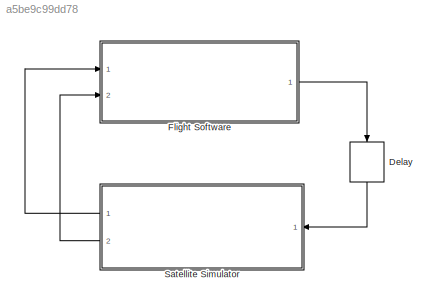
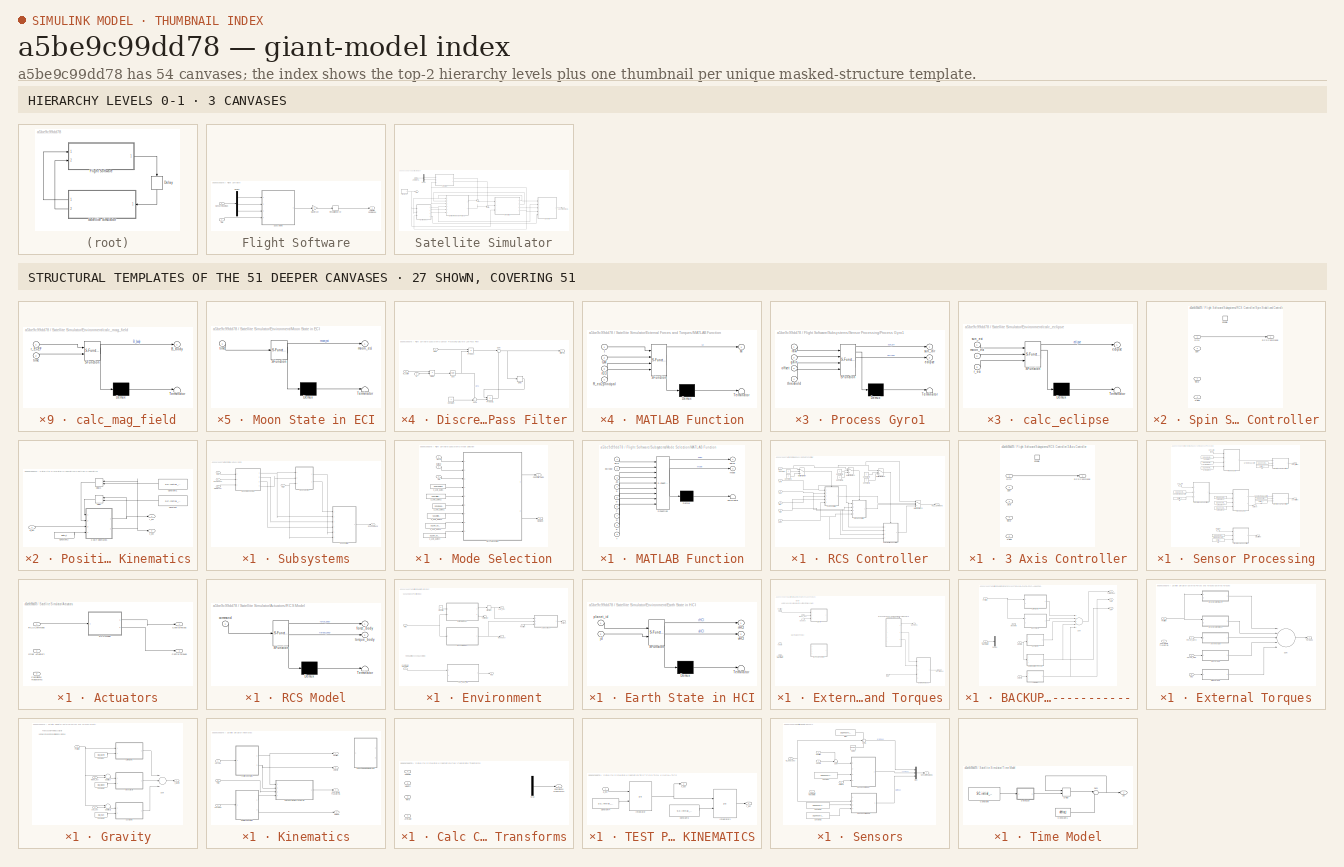
[diagram: thumbnail index - top-2 hierarchy levels (3 canvases) + 27 structural-template representatives of the remaining 51 canvases]
MODEL slx_a5be9c99dd78
KIND model
CONFIG AbsTol = auto
CONFIG EnableMultiTasking = off
CONFIG FixedStep = auto
CONFIG MaxStep = auto
CONFIG MinStep = auto
CONFIG RelTol = 1e-3
CONFIG SampleTimeConstraint = Unconstrained
CONFIG Solver = VariableStepAuto
CONFIG SolverName = VariableStepAuto
CONFIG StartTime = 0.0
CONFIG StopTime = 10.0
BLOCK [Delay] Delay
  DelayLength = 1
  InitialCondition = 0
  InputPortMap = u0
  Ports = [1, 1]
BLOCK [SubSystem] Flight Software
  Ports = [2, 1]
  RequestExecContextInheritance = off
BLOCK [Outport] Flight Software/Actuator Commands
  IconDisplay = Port number
BLOCK [Demux] Flight Software/Demux
  DisplayOption = bar
  Outputs = 3
  Ports = [1, 3]
BLOCK [Gain] Flight Software/Max thrust
  OutDataTypeStr = Inherit: Inherit via internal rule
  ParamDataTypeStr = Inherit: Inherit via internal rule
  SaturateOnIntegerOverflow = off
BLOCK [Rounding] Flight Software/Resolution Error
BLOCK [Inport] Flight Software/Sensor Readings
  IconDisplay = Port number
BLOCK [SubSystem] Flight Software/Subsystems
  Ports = [4, 1]
  RequestExecContextInheritance = off
BLOCK [Inport] Flight Software/Subsystems/Gyro
  IconDisplay = Port number
BLOCK [SubSystem] Flight Software/Subsystems/Mode Selection
  Ports = [3, 2]
  RequestExecContextInheritance = off
BLOCK [Constant] Flight Software/Subsystems/Mode Selection/3_axis_gains
  Value = SC.ax3.gains
BLOCK [Constant] Flight Software/Subsystems/Mode Selection/3_axis_gains1
  Value = SC.spin.gains
BLOCK [Constant] Flight Software/Subsystems/Mode Selection/3_axis_gains2
  Value = SC.ax3.time_constant
BLOCK [Constant] Flight Software/Subsystems/Mode Selection/3_axis_gains3
  Value = SC.spin.time_constant
BLOCK [Constant] Flight Software/Subsystems/Mode Selection/3_axis_gains4
  Value = SC.spin_up.time_constant
BLOCK [Constant] Flight Software/Subsystems/Mode Selection/3_axis_gains5
  Value = SC.spin_up.gains
BLOCK [Outport] Flight Software/Subsystems/Mode Selection/Controller Gains
  IconDisplay = Port number
BLOCK [Inport] Flight Software/Subsystems/Mode Selection/Eclipse
  IconDisplay = Port number
  Port = 2
BLOCK [Inport] Flight Software/Subsystems/Mode Selection/Gyro
  IconDisplay = Port number
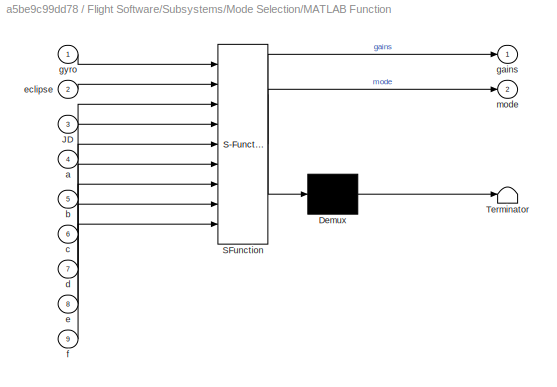
BLOCK [SubSystem] Flight Software/Subsystems/Mode Selection/MATLAB Function
  ErrorFcn = Stateflow.Translate.translate
  PermitHierarchicalResolution = ExplicitOnly
  Ports = [9, 2]
  RequestExecContextInheritance = off
  SFBlockType = MATLAB Function
  TreatAsAtomicUnit = on
BLOCK [Demux] Flight Software/Subsystems/Mode Selection/MATLAB Function/ Demux 
  Outputs = 1
  Ports = [1, 1]
BLOCK [S-Function] Flight Software/Subsystems/Mode Selection/MATLAB Function/ SFunction 
  EnableBusSupport = on
  FunctionName = sf_sfun
  PortCounts = [9 3]
  Ports = [9, 3]
  SFcnIsStateOwnerBlock = off
  SFunctionDeploymentMode = off
  Tag = Stateflow S-Function ADCS 2
BLOCK [Terminator] Flight Software/Subsystems/Mode Selection/MATLAB Function/ Terminator 
BLOCK [Inport] Flight Software/Subsystems/Mode Selection/MATLAB Function/JD
  IconDisplay = Port number
  Port = 3
BLOCK [Inport] Flight Software/Subsystems/Mode Selection/MATLAB Function/a
  IconDisplay = Port number
  Port = 4
BLOCK [Inport] Flight Software/Subsystems/Mode Selection/MATLAB Function/b
  IconDisplay = Port number
  Port = 5
BLOCK [Inport] Flight Software/Subsystems/Mode Selection/MATLAB Function/c
  IconDisplay = Port number
  Port = 6
BLOCK [Inport] Flight Software/Subsystems/Mode Selection/MATLAB Function/d
  IconDisplay = Port number
  Port = 7
BLOCK [Inport] Flight Software/Subsystems/Mode Selection/MATLAB Function/e
  IconDisplay = Port number
  Port = 8
BLOCK [Inport] Flight Software/Subsystems/Mode Selection/MATLAB Function/eclipse
  IconDisplay = Port number
  Port = 2
BLOCK [Inport] Flight Software/Subsystems/Mode Selection/MATLAB Function/f
  IconDisplay = Port number
  Port = 9
BLOCK [Outport] Flight Software/Subsystems/Mode Selection/MATLAB Function/gains
  IconDisplay = Port number
BLOCK [Inport] Flight Software/Subsystems/Mode Selection/MATLAB Function/gyro
  IconDisplay = Port number
BLOCK [Outport] Flight Software/Subsystems/Mode Selection/MATLAB Function/mode
  IconDisplay = Port number
  Port = 2
BLOCK [Outport] Flight Software/Subsystems/Mode Selection/S//C Mode
  IconDisplay = Port number
  Port = 2
BLOCK [Inport] Flight Software/Subsystems/Mode Selection/Time
  IconDisplay = Port number
  Port = 3
BLOCK [Outport] Flight Software/Subsystems/RCS Command
  IconDisplay = Port number
BLOCK [SubSystem] Flight Software/Subsystems/RCS Controller
  Ports = [6, 1]
  RequestExecContextInheritance = off
BLOCK [SubSystem] Flight Software/Subsystems/RCS Controller/3 Axis Controller
  Ports = [5, 1, 1]
  RequestExecContextInheritance = off
  TreatAsAtomicUnit = on
BLOCK [EnablePort] Flight Software/Subsystems/RCS Controller/3 Axis Controller/Enable
  Ports = []
BLOCK [Inport] Flight Software/Subsystems/RCS Controller/3 Axis Controller/Gains
  IconDisplay = Port number
  Port = 5
BLOCK [Inport] Flight Software/Subsystems/RCS Controller/3 Axis Controller/Gyro
  IconDisplay = Port number
BLOCK [Outport] Flight Software/Subsystems/RCS Controller/3 Axis Controller/RCS Command
  IconDisplay = Port number
BLOCK [Inport] Flight Software/Subsystems/RCS Controller/3 Axis Controller/Star
  IconDisplay = Port number
  Port = 3
BLOCK [Inport] Flight Software/Subsystems/RCS Controller/3 Axis Controller/Sun
  IconDisplay = Port number
  Port = 2
BLOCK [Inport] Flight Software/Subsystems/RCS Controller/3 Axis Controller/Time
  IconDisplay = Port number
  Port = 4
BLOCK [Constant] Flight Software/Subsystems/RCS Controller/Constant
BLOCK [Constant] Flight Software/Subsystems/RCS Controller/Constant1
  Value = 0
BLOCK [Constant] Flight Software/Subsystems/RCS Controller/Constant2
BLOCK [Constant] Flight Software/Subsystems/RCS Controller/Constant3
  Value = 0
BLOCK [Constant] Flight Software/Subsystems/RCS Controller/Constant4
BLOCK [Constant] Flight Software/Subsystems/RCS Controller/Constant5
  Value = 0
BLOCK [Inport] Flight Software/Subsystems/RCS Controller/Gains
  IconDisplay = Port number
  Port = 5
BLOCK [Inport] Flight Software/Subsystems/RCS Controller/Gyro
  IconDisplay = Port number
  Port = 2
BLOCK [Inport] Flight Software/Subsystems/RCS Controller/Mode
  IconDisplay = Port number
BLOCK [MultiPortSwitch] Flight Software/Subsystems/RCS Controller/Multiport Switch
  InputSameDT = off
  Inputs = 2
  Ports = [3, 1]
  SaturateOnIntegerOverflow = off
BLOCK [MultiPortSwitch] Flight Software/Subsystems/RCS Controller/Multiport Switch1
  InputSameDT = off
  Inputs = 2
  Ports = [3, 1]
  SaturateOnIntegerOverflow = off
BLOCK [MultiPortSwitch] Flight Software/Subsystems/RCS Controller/Multiport Switch2
  InputSameDT = off
  Inputs = 2
  Ports = [3, 1]
  SaturateOnIntegerOverflow = off
BLOCK [MultiPortSwitch] Flight Software/Subsystems/RCS Controller/Multiport Switch3
  InputSameDT = off
  Ports = [4, 1]
  SaturateOnIntegerOverflow = off
BLOCK [Outport] Flight Software/Subsystems/RCS Controller/RCS_Command
  IconDisplay = Port number
BLOCK [SubSystem] Flight Software/Subsystems/RCS Controller/Spin Stabilized Controller
  Ports = [4, 1, 1]
  RequestExecContextInheritance = off
  TreatAsAtomicUnit = on
BLOCK [EnablePort] Flight Software/Subsystems/RCS Controller/Spin Stabilized Controller/Enable
  Ports = []
BLOCK [Inport] Flight Software/Subsystems/RCS Controller/Spin Stabilized Controller/Gains
  IconDisplay = Port number
  Port = 4
BLOCK [Inport] Flight Software/Subsystems/RCS Controller/Spin Stabilized Controller/Gyro
  IconDisplay = Port number
BLOCK [Outport] Flight Software/Subsystems/RCS Controller/Spin Stabilized Controller/RCS Command
  IconDisplay = Port number
BLOCK [Inport] Flight Software/Subsystems/RCS Controller/Spin Stabilized Controller/Sun
  IconDisplay = Port number
  Port = 2
BLOCK [Inport] Flight Software/Subsystems/RCS Controller/Spin Stabilized Controller/Time
  IconDisplay = Port number
  Port = 3
BLOCK [SubSystem] Flight Software/Subsystems/RCS Controller/Spin Up Controller
  Ports = [4, 1, 1]
  RequestExecContextInheritance = off
  TreatAsAtomicUnit = on
BLOCK [EnablePort] Flight Software/Subsystems/RCS Controller/Spin Up Controller/Enable
  Ports = []
BLOCK [Inport] Flight Software/Subsystems/RCS Controller/Spin Up Controller/Gains
  IconDisplay = Port number
  Port = 4
BLOCK [Inport] Flight Software/Subsystems/RCS Controller/Spin Up Controller/Gyro
  IconDisplay = Port number
BLOCK [Outport] Flight Software/Subsystems/RCS Controller/Spin Up Controller/RCS Command
  IconDisplay = Port number
BLOCK [Inport] Flight Software/Subsystems/RCS Controller/Spin Up Controller/Sun
  IconDisplay = Port number
  Port = 2
BLOCK [Inport] Flight Software/Subsystems/RCS Controller/Spin Up Controller/Time
  IconDisplay = Port number
  Port = 3
BLOCK [Inport] Flight Software/Subsystems/RCS Controller/Star
  IconDisplay = Port number
  Port = 4
BLOCK [Inport] Flight Software/Subsystems/RCS Controller/Sun
  IconDisplay = Port number
  Port = 3
BLOCK [Inport] Flight Software/Subsystems/RCS Controller/Time
  IconDisplay = Port number
  Port = 6
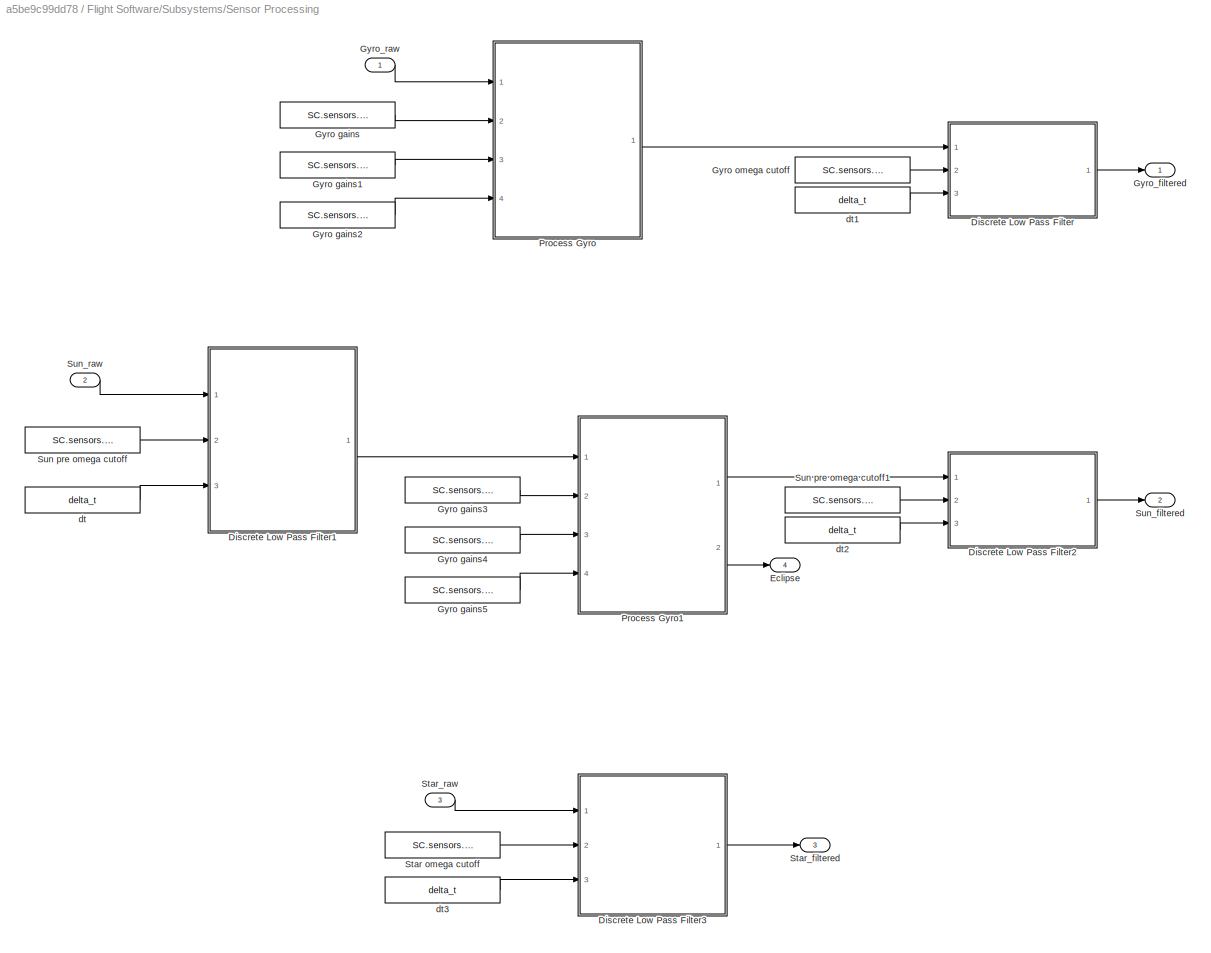
BLOCK [SubSystem] Flight Software/Subsystems/Sensor Processing
  Ports = [3, 4]
  RequestExecContextInheritance = off
BLOCK [SubSystem] Flight Software/Subsystems/Sensor Processing/Discrete Low Pass Filter
  Ports = [3, 1]
  RequestExecContextInheritance = off
BLOCK [Constant] Flight Software/Subsystems/Sensor Processing/Discrete Low Pass Filter/Constant
BLOCK [Delay] Flight Software/Subsystems/Sensor Processing/Discrete Low Pass Filter/Delay
  DelayLength = 1
  InitialCondition = 0
  InputPortMap = u0
  Ports = [1, 1]
BLOCK [Product] Flight Software/Subsystems/Sensor Processing/Discrete Low Pass Filter/Divide
  InputSameDT = off
  Inputs = */
  OutDataTypeStr = Inherit: Inherit via internal rule
  Ports = [2, 1]
  RndMeth = Floor
  SaturateOnIntegerOverflow = off
BLOCK [Math] Flight Software/Subsystems/Sensor Processing/Discrete Low Pass Filter/Exp
  Ports = [1, 1]
BLOCK [Outport] Flight Software/Subsystems/Sensor Processing/Discrete Low Pass Filter/Filtered
  IconDisplay = Port number
BLOCK [Product] Flight Software/Subsystems/Sensor Processing/Discrete Low Pass Filter/Product
  InputSameDT = off
  OutDataTypeStr = Inherit: Inherit via internal rule
  Ports = [2, 1]
  RndMeth = Floor
  SaturateOnIntegerOverflow = off
BLOCK [Product] Flight Software/Subsystems/Sensor Processing/Discrete Low Pass Filter/Product1
  InputSameDT = off
  OutDataTypeStr = Inherit: Inherit via internal rule
  Ports = [2, 1]
  RndMeth = Floor
  SaturateOnIntegerOverflow = off
BLOCK [Inport] Flight Software/Subsystems/Sensor Processing/Discrete Low Pass Filter/Raw
  IconDisplay = Port number
BLOCK [Sum] Flight Software/Subsystems/Sensor Processing/Discrete Low Pass Filter/Sum
  IconShape = round
  InputSameDT = off
  Inputs = |++
  OutDataTypeStr = Inherit: Inherit via internal rule
  Ports = [2, 1]
  SaturateOnIntegerOverflow = off
BLOCK [Sum] Flight Software/Subsystems/Sensor Processing/Discrete Low Pass Filter/Sum1
  IconShape = round
  InputSameDT = off
  Inputs = -+|
  OutDataTypeStr = Inherit: Inherit via internal rule
  Ports = [2, 1]
  SaturateOnIntegerOverflow = off
BLOCK [Inport] Flight Software/Subsystems/Sensor Processing/Discrete Low Pass Filter/dt
  IconDisplay = Port number
  Port = 3
BLOCK [Inport] Flight Software/Subsystems/Sensor Processing/Discrete Low Pass Filter/w_cutoff
  IconDisplay = Port number
  Port = 2
BLOCK [SubSystem] Flight Software/Subsystems/Sensor Processing/Discrete Low Pass Filter1
  Ports = [3, 1]
  RequestExecContextInheritance = off
BLOCK [Constant] Flight Software/Subsystems/Sensor Processing/Discrete Low Pass Filter1/Constant
BLOCK [Delay] Flight Software/Subsystems/Sensor Processing/Discrete Low Pass Filter1/Delay
  DelayLength = 1
  InitialCondition = 0
  InputPortMap = u0
  Ports = [1, 1]
BLOCK [Product] Flight Software/Subsystems/Sensor Processing/Discrete Low Pass Filter1/Divide
  InputSameDT = off
  Inputs = */
  OutDataTypeStr = Inherit: Inherit via internal rule
  Ports = [2, 1]
  RndMeth = Floor
  SaturateOnIntegerOverflow = off
BLOCK [Math] Flight Software/Subsystems/Sensor Processing/Discrete Low Pass Filter1/Exp
  Ports = [1, 1]
BLOCK [Outport] Flight Software/Subsystems/Sensor Processing/Discrete Low Pass Filter1/Filtered
  IconDisplay = Port number
BLOCK [Product] Flight Software/Subsystems/Sensor Processing/Discrete Low Pass Filter1/Product
  InputSameDT = off
  OutDataTypeStr = Inherit: Inherit via internal rule
  Ports = [2, 1]
  RndMeth = Floor
  SaturateOnIntegerOverflow = off
BLOCK [Product] Flight Software/Subsystems/Sensor Processing/Discrete Low Pass Filter1/Product1
  InputSameDT = off
  OutDataTypeStr = Inherit: Inherit via internal rule
  Ports = [2, 1]
  RndMeth = Floor
  SaturateOnIntegerOverflow = off
BLOCK [Inport] Flight Software/Subsystems/Sensor Processing/Discrete Low Pass Filter1/Raw
  IconDisplay = Port number
BLOCK [Sum] Flight Software/Subsystems/Sensor Processing/Discrete Low Pass Filter1/Sum
  IconShape = round
  InputSameDT = off
  Inputs = |++
  OutDataTypeStr = Inherit: Inherit via internal rule
  Ports = [2, 1]
  SaturateOnIntegerOverflow = off
BLOCK [Sum] Flight Software/Subsystems/Sensor Processing/Discrete Low Pass Filter1/Sum1
  IconShape = round
  InputSameDT = off
  Inputs = -+|
  OutDataTypeStr = Inherit: Inherit via internal rule
  Ports = [2, 1]
  SaturateOnIntegerOverflow = off
BLOCK [Inport] Flight Software/Subsystems/Sensor Processing/Discrete Low Pass Filter1/dt
  IconDisplay = Port number
  Port = 3
BLOCK [Inport] Flight Software/Subsystems/Sensor Processing/Discrete Low Pass Filter1/w_cutoff
  IconDisplay = Port number
  Port = 2
BLOCK [SubSystem] Flight Software/Subsystems/Sensor Processing/Discrete Low Pass Filter2
  Ports = [3, 1]
  RequestExecContextInheritance = off
BLOCK [Constant] Flight Software/Subsystems/Sensor Processing/Discrete Low Pass Filter2/Constant
BLOCK [Delay] Flight Software/Subsystems/Sensor Processing/Discrete Low Pass Filter2/Delay
  DelayLength = 1
  InitialCondition = 0
  InputPortMap = u0
  Ports = [1, 1]
BLOCK [Product] Flight Software/Subsystems/Sensor Processing/Discrete Low Pass Filter2/Divide
  InputSameDT = off
  Inputs = */
  OutDataTypeStr = Inherit: Inherit via internal rule
  Ports = [2, 1]
  RndMeth = Floor
  SaturateOnIntegerOverflow = off
BLOCK [Math] Flight Software/Subsystems/Sensor Processing/Discrete Low Pass Filter2/Exp
  Ports = [1, 1]
BLOCK [Outport] Flight Software/Subsystems/Sensor Processing/Discrete Low Pass Filter2/Filtered
  IconDisplay = Port number
BLOCK [Product] Flight Software/Subsystems/Sensor Processing/Discrete Low Pass Filter2/Product
  InputSameDT = off
  OutDataTypeStr = Inherit: Inherit via internal rule
  Ports = [2, 1]
  RndMeth = Floor
  SaturateOnIntegerOverflow = off
BLOCK [Product] Flight Software/Subsystems/Sensor Processing/Discrete Low Pass Filter2/Product1
  InputSameDT = off
  OutDataTypeStr = Inherit: Inherit via internal rule
  Ports = [2, 1]
  RndMeth = Floor
  SaturateOnIntegerOverflow = off
BLOCK [Inport] Flight Software/Subsystems/Sensor Processing/Discrete Low Pass Filter2/Raw
  IconDisplay = Port number
BLOCK [Sum] Flight Software/Subsystems/Sensor Processing/Discrete Low Pass Filter2/Sum
  IconShape = round
  InputSameDT = off
  Inputs = |++
  OutDataTypeStr = Inherit: Inherit via internal rule
  Ports = [2, 1]
  SaturateOnIntegerOverflow = off
BLOCK [Sum] Flight Software/Subsystems/Sensor Processing/Discrete Low Pass Filter2/Sum1
  IconShape = round
  InputSameDT = off
  Inputs = -+|
  OutDataTypeStr = Inherit: Inherit via internal rule
  Ports = [2, 1]
  SaturateOnIntegerOverflow = off
BLOCK [Inport] Flight Software/Subsystems/Sensor Processing/Discrete Low Pass Filter2/dt
  IconDisplay = Port number
  Port = 3
BLOCK [Inport] Flight Software/Subsystems/Sensor Processing/Discrete Low Pass Filter2/w_cutoff
  IconDisplay = Port number
  Port = 2
BLOCK [SubSystem] Flight Software/Subsystems/Sensor Processing/Discrete Low Pass Filter3
  Ports = [3, 1]
  RequestExecContextInheritance = off
BLOCK [Constant] Flight Software/Subsystems/Sensor Processing/Discrete Low Pass Filter3/Constant
BLOCK [Delay] Flight Software/Subsystems/Sensor Processing/Discrete Low Pass Filter3/Delay
  DelayLength = 1
  InitialCondition = 0
  InputPortMap = u0
  Ports = [1, 1]
BLOCK [Product] Flight Software/Subsystems/Sensor Processing/Discrete Low Pass Filter3/Divide
  InputSameDT = off
  Inputs = */
  OutDataTypeStr = Inherit: Inherit via internal rule
  Ports = [2, 1]
  RndMeth = Floor
  SaturateOnIntegerOverflow = off
BLOCK [Math] Flight Software/Subsystems/Sensor Processing/Discrete Low Pass Filter3/Exp
  Ports = [1, 1]
BLOCK [Outport] Flight Software/Subsystems/Sensor Processing/Discrete Low Pass Filter3/Filtered
  IconDisplay = Port number
BLOCK [Product] Flight Software/Subsystems/Sensor Processing/Discrete Low Pass Filter3/Product
  InputSameDT = off
  OutDataTypeStr = Inherit: Inherit via internal rule
  Ports = [2, 1]
  RndMeth = Floor
  SaturateOnIntegerOverflow = off
BLOCK [Product] Flight Software/Subsystems/Sensor Processing/Discrete Low Pass Filter3/Product1
  InputSameDT = off
  OutDataTypeStr = Inherit: Inherit via internal rule
  Ports = [2, 1]
  RndMeth = Floor
  SaturateOnIntegerOverflow = off
BLOCK [Inport] Flight Software/Subsystems/Sensor Processing/Discrete Low Pass Filter3/Raw
  IconDisplay = Port number
BLOCK [Sum] Flight Software/Subsystems/Sensor Processing/Discrete Low Pass Filter3/Sum
  IconShape = round
  InputSameDT = off
  Inputs = |++
  OutDataTypeStr = Inherit: Inherit via internal rule
  Ports = [2, 1]
  SaturateOnIntegerOverflow = off
BLOCK [Sum] Flight Software/Subsystems/Sensor Processing/Discrete Low Pass Filter3/Sum1
  IconShape = round
  InputSameDT = off
  Inputs = -+|
  OutDataTypeStr = Inherit: Inherit via internal rule
  Ports = [2, 1]
  SaturateOnIntegerOverflow = off
BLOCK [Inport] Flight Software/Subsystems/Sensor Processing/Discrete Low Pass Filter3/dt
  IconDisplay = Port number
  Port = 3
BLOCK [Inport] Flight Software/Subsystems/Sensor Processing/Discrete Low Pass Filter3/w_cutoff
  IconDisplay = Port number
  Port = 2
BLOCK [Outport] Flight Software/Subsystems/Sensor Processing/Eclipse
  IconDisplay = Port number
  Port = 4
BLOCK [Constant] Flight Software/Subsystems/Sensor Processing/Gyro gains
  Value = SC.sensors.gyro.gains
BLOCK [Constant] Flight Software/Subsystems/Sensor Processing/Gyro gains1
  Value = SC.sensors.gyro.offset
BLOCK [Constant] Flight Software/Subsystems/Sensor Processing/Gyro gains2
  Value = SC.sensors.gyro.rot_mat
BLOCK [Constant] Flight Software/Subsystems/Sensor Processing/Gyro gains3
  Value = SC.sensors.sun.gains
BLOCK [Constant] Flight Software/Subsystems/Sensor Processing/Gyro gains4
  Value = SC.sensors.sun.offset
BLOCK [Constant] Flight Software/Subsystems/Sensor Processing/Gyro gains5
  Value = SC.sensors.sun.threshold
BLOCK [Constant] Flight Software/Subsystems/Sensor Processing/Gyro omega cutoff
  Value = SC.sensors.gyro.wc
BLOCK [Outport] Flight Software/Subsystems/Sensor Processing/Gyro_filtered
  IconDisplay = Port number
BLOCK [Inport] Flight Software/Subsystems/Sensor Processing/Gyro_raw
  IconDisplay = Port number
BLOCK [SubSystem] Flight Software/Subsystems/Sensor Processing/Process Gyro
  ErrorFcn = Stateflow.Translate.translate
  PermitHierarchicalResolution = ExplicitOnly
  Ports = [4, 1]
  RequestExecContextInheritance = off
  SFBlockType = MATLAB Function
  TreatAsAtomicUnit = on
BLOCK [Demux] Flight Software/Subsystems/Sensor Processing/Process Gyro/ Demux 
  Outputs = 1
  Ports = [1, 1]
BLOCK [S-Function] Flight Software/Subsystems/Sensor Processing/Process Gyro/ SFunction 
  EnableBusSupport = on
  FunctionName = sf_sfun
  PortCounts = [4 2]
  Ports = [4, 2]
  SFcnIsStateOwnerBlock = off
  SFunctionDeploymentMode = off
  Tag = Stateflow S-Function ADCS 1
BLOCK [Terminator] Flight Software/Subsystems/Sensor Processing/Process Gyro/ Terminator 
BLOCK [Inport] Flight Software/Subsystems/Sensor Processing/Process Gyro/gain
  IconDisplay = Port number
  Port = 2
BLOCK [Outport] Flight Software/Subsystems/Sensor Processing/Process Gyro/gyro
  IconDisplay = Port number
BLOCK [Inport] Flight Software/Subsystems/Sensor Processing/Process Gyro/offset
  IconDisplay = Port number
  Port = 3
BLOCK [Inport] Flight Software/Subsystems/Sensor Processing/Process Gyro/raw
  IconDisplay = Port number
BLOCK [Inport] Flight Software/Subsystems/Sensor Processing/Process Gyro/rot
  IconDisplay = Port number
  Port = 4
BLOCK [SubSystem] Flight Software/Subsystems/Sensor Processing/Process Gyro1
  ErrorFcn = Stateflow.Translate.translate
  PermitHierarchicalResolution = ExplicitOnly
  Ports = [4, 2]
  RequestExecContextInheritance = off
  SFBlockType = MATLAB Function
  TreatAsAtomicUnit = on
BLOCK [Demux] Flight Software/Subsystems/Sensor Processing/Process Gyro1/ Demux 
  Outputs = 1
  Ports = [1, 1]
BLOCK [S-Function] Flight Software/Subsystems/Sensor Processing/Process Gyro1/ SFunction 
  EnableBusSupport = on
  FunctionName = sf_sfun
  PortCounts = [4 3]
  Ports = [4, 3]
  SFcnIsStateOwnerBlock = off
  SFunctionDeploymentMode = off
  Tag = Stateflow S-Function ADCS 3
BLOCK [Terminator] Flight Software/Subsystems/Sensor Processing/Process Gyro1/ Terminator 
BLOCK [Outport] Flight Software/Subsystems/Sensor Processing/Process Gyro1/eclipse
  IconDisplay = Port number
  Port = 2
BLOCK [Inport] Flight Software/Subsystems/Sensor Processing/Process Gyro1/gain
  IconDisplay = Port number
  Port = 2
BLOCK [Inport] Flight Software/Subsystems/Sensor Processing/Process Gyro1/offset
  IconDisplay = Port number
  Port = 3
BLOCK [Inport] Flight Software/Subsystems/Sensor Processing/Process Gyro1/raw
  IconDisplay = Port number
BLOCK [Outport] Flight Software/Subsystems/Sensor Processing/Process Gyro1/sun_dir
  IconDisplay = Port number
BLOCK [Inport] Flight Software/Subsystems/Sensor Processing/Process Gyro1/threshold
  IconDisplay = Port number
  Port = 4
BLOCK [Constant] Flight Software/Subsystems/Sensor Processing/Star omega cutoff
  Value = SC.sensors.star.wc
BLOCK [Outport] Flight Software/Subsystems/Sensor Processing/Star_filtered
  IconDisplay = Port number
  Port = 3
BLOCK [Inport] Flight Software/Subsystems/Sensor Processing/Star_raw
  IconDisplay = Port number
  Port = 3
BLOCK [Constant] Flight Software/Subsystems/Sensor Processing/Sun pre omega cutoff
  Value = SC.sensors.sun.pre_wc
BLOCK [Constant] Flight Software/Subsystems/Sensor Processing/Sun pre omega cutoff1
  Value = SC.sensors.sun.dir_wc
BLOCK [Outport] Flight Software/Subsystems/Sensor Processing/Sun_filtered
  IconDisplay = Port number
  Port = 2
BLOCK [Inport] Flight Software/Subsystems/Sensor Processing/Sun_raw
  IconDisplay = Port number
  Port = 2
BLOCK [Constant] Flight Software/Subsystems/Sensor Processing/dt
  Value = delta_t
BLOCK [Constant] Flight Software/Subsystems/Sensor Processing/dt1
  Value = delta_t
BLOCK [Constant] Flight Software/Subsystems/Sensor Processing/dt2
  Value = delta_t
BLOCK [Constant] Flight Software/Subsystems/Sensor Processing/dt3
  Value = delta_t
BLOCK [Inport] Flight Software/Subsystems/Star Tracker
  IconDisplay = Port number
  Port = 3
BLOCK [Inport] Flight Software/Subsystems/Sun Sensor
  IconDisplay = Port number
  Port = 2
BLOCK [Inport] Flight Software/Subsystems/Time
  IconDisplay = Port number
  Port = 4
BLOCK [Inport] Flight Software/Time
  IconDisplay = Port number
  Port = 2
BLOCK [SubSystem] Satellite Simulator
  Ports = [1, 2]
  RequestExecContextInheritance = off
BLOCK [Inport] Satellite Simulator/Actuator Commands
  IconDisplay = Port number
BLOCK [SubSystem] Satellite Simulator/Actuators
  Ports = [3, 2]
  RequestExecContextInheritance = off
BLOCK [Outport] Satellite Simulator/Actuators/Control Forces
  IconDisplay = Port number
BLOCK [Outport] Satellite Simulator/Actuators/Control Torques
  IconDisplay = Port number
  Port = 2
BLOCK [Inport] Satellite Simulator/Actuators/Coordinate Transforms
  IconDisplay = Port number
  Port = 3
BLOCK [Inport] Satellite Simulator/Actuators/Other Actuator?
  IconDisplay = Port number
  Port = 2
BLOCK [Inport] Satellite Simulator/Actuators/RCS Command
  IconDisplay = Port number
BLOCK [SubSystem] Satellite Simulator/Actuators/RCS Model
  ErrorFcn = Stateflow.Translate.translate
  PermitHierarchicalResolution = ExplicitOnly
  Ports = [1, 2]
  RequestExecContextInheritance = off
  SFBlockType = MATLAB Function
  TreatAsAtomicUnit = on
BLOCK [Demux] Satellite Simulator/Actuators/RCS Model/ Demux 
  Outputs = 1
  Ports = [1, 1]
BLOCK [S-Function] Satellite Simulator/Actuators/RCS Model/ SFunction 
  EnableBusSupport = on
  FunctionName = sf_sfun
  PortCounts = [1 3]
  Ports = [1, 3]
  SFcnIsStateOwnerBlock = off
  SFunctionDeploymentMode = off
  Tag = Stateflow S-Function ADCS 18
BLOCK [Terminator] Satellite Simulator/Actuators/RCS Model/ Terminator 
BLOCK [Inport] Satellite Simulator/Actuators/RCS Model/command
  IconDisplay = Port number
BLOCK [Outport] Satellite Simulator/Actuators/RCS Model/force_body
  IconDisplay = Port number
BLOCK [Outport] Satellite Simulator/Actuators/RCS Model/torque_body
  IconDisplay = Port number
  Port = 2
BLOCK [Demux] Satellite Simulator/Demux
  DisplayOption = bar
  Outputs = 2
  Ports = [1, 2]
BLOCK [SubSystem] Satellite Simulator/Environment
  Ports = [3, 4]
  RequestExecContextInheritance = off
BLOCK [Inport] Satellite Simulator/Environment/Coordinate Transforms
  IconDisplay = Port number
  Port = 3
BLOCK [SubSystem] Satellite Simulator/Environment/Earth State in HCI
  ErrorFcn = Stateflow.Translate.translate
  PermitHierarchicalResolution = ExplicitOnly
  Ports = [2, 2]
  RequestExecContextInheritance = off
  SFBlockType = MATLAB Function
  TreatAsAtomicUnit = on
BLOCK [Demux] Satellite Simulator/Environment/Earth State in HCI/ Demux 
  Outputs = 1
  Ports = [1, 1]
BLOCK [S-Function] Satellite Simulator/Environment/Earth State in HCI/ SFunction 
  EnableBusSupport = on
  FunctionName = sf_sfun
  PortCounts = [2 3]
  Ports = [2, 3]
  SFcnIsStateOwnerBlock = off
  SFunctionDeploymentMode = off
  Tag = Stateflow S-Function ADCS 25
BLOCK [Terminator] Satellite Simulator/Environment/Earth State in HCI/ Terminator 
BLOCK [Inport] Satellite Simulator/Environment/Earth State in HCI/jd
  IconDisplay = Port number
  Port = 2
BLOCK [Inport] Satellite Simulator/Environment/Earth State in HCI/planet_id
  IconDisplay = Port number
BLOCK [Outport] Satellite Simulator/Environment/Earth State in HCI/rHCI
  IconDisplay = Port number
BLOCK [Outport] Satellite Simulator/Environment/Earth State in HCI/vHCI
  IconDisplay = Port number
  Port = 2
BLOCK [Outport] Satellite Simulator/Environment/Eclipse
  IconDisplay = Port number
  Port = 4
BLOCK [Signum] Satellite Simulator/Environment/Flip Sign
BLOCK [Outport] Satellite Simulator/Environment/Mag
  IconDisplay = Port number
  Port = 3
BLOCK [SubSystem] Satellite Simulator/Environment/Moon State in ECI
  ErrorFcn = Stateflow.Translate.translate
  PermitHierarchicalResolution = ExplicitOnly
  Ports = [1, 1]
  RequestExecContextInheritance = off
  SFBlockType = MATLAB Function
  TreatAsAtomicUnit = on
BLOCK [Demux] Satellite Simulator/Environment/Moon State in ECI/ Demux 
  Outputs = 1
  Ports = [1, 1]
BLOCK [S-Function] Satellite Simulator/Environment/Moon State in ECI/ SFunction 
  EnableBusSupport = on
  FunctionName = sf_sfun
  PortCounts = [1 2]
  Ports = [1, 2]
  SFcnIsStateOwnerBlock = off
  SFunctionDeploymentMode = off
  Tag = Stateflow S-Function ADCS 26
BLOCK [Terminator] Satellite Simulator/Environment/Moon State in ECI/ Terminator 
BLOCK [Outport] Satellite Simulator/Environment/Moon State in ECI/moon_eci
  IconDisplay = Port number
BLOCK [Inport] Satellite Simulator/Environment/Moon State in ECI/time
  IconDisplay = Port number
BLOCK [Constant] Satellite Simulator/Environment/Planet ID
  Value = 3
BLOCK [Inport] Satellite Simulator/Environment/Position
  IconDisplay = Port number
  Port = 2
BLOCK [Terminator] Satellite Simulator/Environment/Terminator
BLOCK [Inport] Satellite Simulator/Environment/Time
  IconDisplay = Port number
BLOCK [SubSystem] Satellite Simulator/Environment/calc_eclipse
  ErrorFcn = Stateflow.Translate.translate
  PermitHierarchicalResolution = ExplicitOnly
  Ports = [3, 1]
  RequestExecContextInheritance = off
  SFBlockType = MATLAB Function
  TreatAsAtomicUnit = on
BLOCK [Demux] Satellite Simulator/Environment/calc_eclipse/ Demux 
  Outputs = 1
  Ports = [1, 1]
BLOCK [S-Function] Satellite Simulator/Environment/calc_eclipse/ SFunction 
  EnableBusSupport = on
  FunctionName = sf_sfun
  PortCounts = [3 2]
  Ports = [3, 2]
  SFcnIsStateOwnerBlock = off
  SFunctionDeploymentMode = off
  Tag = Stateflow S-Function ADCS 27
BLOCK [Terminator] Satellite Simulator/Environment/calc_eclipse/ Terminator 
BLOCK [Outport] Satellite Simulator/Environment/calc_eclipse/eclipse
  IconDisplay = Port number
BLOCK [Inport] Satellite Simulator/Environment/calc_eclipse/moon_eci
  IconDisplay = Port number
  Port = 2
BLOCK [Inport] Satellite Simulator/Environment/calc_eclipse/r_eci
  IconDisplay = Port number
  Port = 3
BLOCK [Inport] Satellite Simulator/Environment/calc_eclipse/sun_eci
  IconDisplay = Port number
BLOCK [SubSystem] Satellite Simulator/Environment/calc_mag_field
  ErrorFcn = Stateflow.Translate.translate
  PermitHierarchicalResolution = ExplicitOnly
  Ports = [2, 1]
  RequestExecContextInheritance = off
  SFBlockType = MATLAB Function
  TreatAsAtomicUnit = on
BLOCK [Demux] Satellite Simulator/Environment/calc_mag_field/ Demux 
  Outputs = 1
  Ports = [1, 1]
BLOCK [S-Function] Satellite Simulator/Environment/calc_mag_field/ SFunction 
  EnableBusSupport = on
  FunctionName = sf_sfun
  PortCounts = [2 2]
  Ports = [2, 2]
  SFcnIsStateOwnerBlock = off
  SFunctionDeploymentMode = off
  Tag = Stateflow S-Function ADCS 28
BLOCK [Terminator] Satellite Simulator/Environment/calc_mag_field/ Terminator 
BLOCK [Outport] Satellite Simulator/Environment/calc_mag_field/B_body
  IconDisplay = Port number
BLOCK [Inport] Satellite Simulator/Environment/calc_mag_field/r_ECEF
  IconDisplay = Port number
BLOCK [Inport] Satellite Simulator/Environment/calc_mag_field/time
  IconDisplay = Port number
  Port = 2
BLOCK [Outport] Satellite Simulator/Environment/moon_eci
  IconDisplay = Port number
  Port = 2
BLOCK [Outport] Satellite Simulator/Environment/sun_eci
  IconDisplay = Port number
BLOCK [SubSystem] Satellite Simulator/External Forces and Torques
  Ports = [6, 2]
  RequestExecContextInheritance = off
BLOCK [SubSystem] Satellite Simulator/External Forces and Torques/BACKUP BLOCK PLANNING ON BREAKING UP INTO SUBSECTIONS AS <--------------
  Ports = [5, 3]
  RequestExecContextInheritance = off
BLOCK [Outport] Satellite Simulator/External Forces and Torques/BACKUP BLOCK PLANNING ON BREAKING UP INTO SUBSECTIONS AS <--------------/Aero
  IconDisplay = Port number
  Port = 2
BLOCK [SubSystem] Satellite Simulator/External Forces and Torques/BACKUP BLOCK PLANNING ON BREAKING UP INTO SUBSECTIONS AS <--------------/Aero Drag
  ErrorFcn = Stateflow.Translate.translate
  PermitHierarchicalResolution = ExplicitOnly
  Ports = [3, 1]
  RequestExecContextInheritance = off
  SFBlockType = MATLAB Function
  TreatAsAtomicUnit = on
BLOCK [Demux] Satellite Simulator/External Forces and Torques/BACKUP BLOCK PLANNING ON BREAKING UP INTO SUBSECTIONS AS <--------------/Aero Drag/ Demux 
  Outputs = 1
  Ports = [1, 1]
BLOCK [S-Function] Satellite Simulator/External Forces and Torques/BACKUP BLOCK PLANNING ON BREAKING UP INTO SUBSECTIONS AS <--------------/Aero Drag/ SFunction 
  EnableBusSupport = on
  FunctionName = sf_sfun
  PortCounts = [3 2]
  Ports = [3, 2]
  SFcnIsStateOwnerBlock = off
  SFunctionDeploymentMode = off
  Tag = Stateflow S-Function ADCS 29
BLOCK [Terminator] Satellite Simulator/External Forces and Torques/BACKUP BLOCK PLANNING ON BREAKING UP INTO SUBSECTIONS AS <--------------/Aero Drag/ Terminator 
BLOCK [Inport] Satellite Simulator/External Forces and Torques/BACKUP BLOCK PLANNING ON BREAKING UP INTO SUBSECTIONS AS <--------------/Aero Drag/R_eci2body
  IconDisplay = Port number
  Port = 3
BLOCK [Outport] Satellite Simulator/External Forces and Torques/BACKUP BLOCK PLANNING ON BREAKING UP INTO SUBSECTIONS AS <--------------/Aero Drag/a_eci
  IconDisplay = Port number
BLOCK [Inport] Satellite Simulator/External Forces and Torques/BACKUP BLOCK PLANNING ON BREAKING UP INTO SUBSECTIONS AS <--------------/Aero Drag/r_eci
  IconDisplay = Port number
BLOCK [Inport] Satellite Simulator/External Forces and Torques/BACKUP BLOCK PLANNING ON BREAKING UP INTO SUBSECTIONS AS <--------------/Aero Drag/v_eci
  IconDisplay = Port number
  Port = 2
BLOCK [Inport] Satellite Simulator/External Forces and Torques/BACKUP BLOCK PLANNING ON BREAKING UP INTO SUBSECTIONS AS <--------------/Coordinate Transforms
  IconDisplay = Port number
  Port = 3
BLOCK [Demux] Satellite Simulator/External Forces and Torques/BACKUP BLOCK PLANNING ON BREAKING UP INTO SUBSECTIONS AS <--------------/Demux
  DisplayOption = bar
  Ports = [1, 4]
BLOCK [SubSystem] Satellite Simulator/External Forces and Torques/BACKUP BLOCK PLANNING ON BREAKING UP INTO SUBSECTIONS AS <--------------/Earth Gravity
  ErrorFcn = Stateflow.Translate.translate
  PermitHierarchicalResolution = ExplicitOnly
  Ports = [2, 1]
  RequestExecContextInheritance = off
  SFBlockType = MATLAB Function
  TreatAsAtomicUnit = on
BLOCK [Demux] Satellite Simulator/External Forces and Torques/BACKUP BLOCK PLANNING ON BREAKING UP INTO SUBSECTIONS AS <--------------/Earth Gravity/ Demux 
  Outputs = 1
  Ports = [1, 1]
BLOCK [S-Function] Satellite Simulator/External Forces and Torques/BACKUP BLOCK PLANNING ON BREAKING UP INTO SUBSECTIONS AS <--------------/Earth Gravity/ SFunction 
  EnableBusSupport = on
  FunctionName = sf_sfun
  PortCounts = [2 2]
  Ports = [2, 2]
  SFcnIsStateOwnerBlock = off
  SFunctionDeploymentMode = off
  Tag = Stateflow S-Function ADCS 30
BLOCK [Terminator] Satellite Simulator/External Forces and Torques/BACKUP BLOCK PLANNING ON BREAKING UP INTO SUBSECTIONS AS <--------------/Earth Gravity/ Terminator 
BLOCK [Inport] Satellite Simulator/External Forces and Torques/BACKUP BLOCK PLANNING ON BREAKING UP INTO SUBSECTIONS AS <--------------/Earth Gravity/GM_Earth
  IconDisplay = Port number
  Port = 2
BLOCK [Outport] Satellite Simulator/External Forces and Torques/BACKUP BLOCK PLANNING ON BREAKING UP INTO SUBSECTIONS AS <--------------/Earth Gravity/a_eci
  IconDisplay = Port number
BLOCK [Inport] Satellite Simulator/External Forces and Torques/BACKUP BLOCK PLANNING ON BREAKING UP INTO SUBSECTIONS AS <--------------/Earth Gravity/r_eci
  IconDisplay = Port number
BLOCK [SubSystem] Satellite Simulator/External Forces and Torques/BACKUP BLOCK PLANNING ON BREAKING UP INTO SUBSECTIONS AS <--------------/Moon Gravity
  ErrorFcn = Stateflow.Translate.translate
  PermitHierarchicalResolution = ExplicitOnly
  Ports = [2, 1]
  RequestExecContextInheritance = off
  SFBlockType = MATLAB Function
  TreatAsAtomicUnit = on
BLOCK [Demux] Satellite Simulator/External Forces and Torques/BACKUP BLOCK PLANNING ON BREAKING UP INTO SUBSECTIONS AS <--------------/Moon Gravity/ Demux 
  Outputs = 1
  Ports = [1, 1]
BLOCK [S-Function] Satellite Simulator/External Forces and Torques/BACKUP BLOCK PLANNING ON BREAKING UP INTO SUBSECTIONS AS <--------------/Moon Gravity/ SFunction 
  EnableBusSupport = on
  FunctionName = sf_sfun
  PortCounts = [2 2]
  Ports = [2, 2]
  SFcnIsStateOwnerBlock = off
  SFunctionDeploymentMode = off
  Tag = Stateflow S-Function ADCS 31
BLOCK [Terminator] Satellite Simulator/External Forces and Torques/BACKUP BLOCK PLANNING ON BREAKING UP INTO SUBSECTIONS AS <--------------/Moon Gravity/ Terminator 
BLOCK [Inport] Satellite Simulator/External Forces and Torques/BACKUP BLOCK PLANNING ON BREAKING UP INTO SUBSECTIONS AS <--------------/Moon Gravity/GM_Earth
  IconDisplay = Port number
  Port = 2
BLOCK [Outport] Satellite Simulator/External Forces and Torques/BACKUP BLOCK PLANNING ON BREAKING UP INTO SUBSECTIONS AS <--------------/Moon Gravity/a_eci
  IconDisplay = Port number
BLOCK [Inport] Satellite Simulator/External Forces and Torques/BACKUP BLOCK PLANNING ON BREAKING UP INTO SUBSECTIONS AS <--------------/Moon Gravity/r_eci
  IconDisplay = Port number
BLOCK [Inport] Satellite Simulator/External Forces and Torques/BACKUP BLOCK PLANNING ON BREAKING UP INTO SUBSECTIONS AS <--------------/Moon info
  IconDisplay = Port number
  Port = 5
BLOCK [Inport] Satellite Simulator/External Forces and Torques/BACKUP BLOCK PLANNING ON BREAKING UP INTO SUBSECTIONS AS <--------------/Position
  IconDisplay = Port number
BLOCK [Outport] Satellite Simulator/External Forces and Torques/BACKUP BLOCK PLANNING ON BREAKING UP INTO SUBSECTIONS AS <--------------/SRP
  IconDisplay = Port number
  Port = 3
BLOCK [SubSystem] Satellite Simulator/External Forces and Torques/BACKUP BLOCK PLANNING ON BREAKING UP INTO SUBSECTIONS AS <--------------/Solar Radiation Pressure
  ErrorFcn = Stateflow.Translate.translate
  PermitHierarchicalResolution = ExplicitOnly
  Ports = [3, 1]
  RequestExecContextInheritance = off
  SFBlockType = MATLAB Function
  TreatAsAtomicUnit = on
BLOCK [Demux] Satellite Simulator/External Forces and Torques/BACKUP BLOCK PLANNING ON BREAKING UP INTO SUBSECTIONS AS <--------------/Solar Radiation Pressure/ Demux 
  Outputs = 1
  Ports = [1, 1]
BLOCK [S-Function] Satellite Simulator/External Forces and Torques/BACKUP BLOCK PLANNING ON BREAKING UP INTO SUBSECTIONS AS <--------------/Solar Radiation Pressure/ SFunction 
  EnableBusSupport = on
  FunctionName = sf_sfun
  PortCounts = [3 2]
  Ports = [3, 2]
  SFcnIsStateOwnerBlock = off
  SFunctionDeploymentMode = off
  Tag = Stateflow S-Function ADCS 32
BLOCK [Terminator] Satellite Simulator/External Forces and Torques/BACKUP BLOCK PLANNING ON BREAKING UP INTO SUBSECTIONS AS <--------------/Solar Radiation Pressure/ Terminator 
BLOCK [Inport] Satellite Simulator/External Forces and Torques/BACKUP BLOCK PLANNING ON BREAKING UP INTO SUBSECTIONS AS <--------------/Solar Radiation Pressure/R_eci2body
  IconDisplay = Port number
  Port = 3
BLOCK [Outport] Satellite Simulator/External Forces and Torques/BACKUP BLOCK PLANNING ON BREAKING UP INTO SUBSECTIONS AS <--------------/Solar Radiation Pressure/a_eci
  IconDisplay = Port number
BLOCK [Inport] Satellite Simulator/External Forces and Torques/BACKUP BLOCK PLANNING ON BREAKING UP INTO SUBSECTIONS AS <--------------/Solar Radiation Pressure/r_eci
  IconDisplay = Port number
BLOCK [Inport] Satellite Simulator/External Forces and Torques/BACKUP BLOCK PLANNING ON BREAKING UP INTO SUBSECTIONS AS <--------------/Solar Radiation Pressure/sun_eci
  IconDisplay = Port number
  Port = 2
BLOCK [Sum] Satellite Simulator/External Forces and Torques/BACKUP BLOCK PLANNING ON BREAKING UP INTO SUBSECTIONS AS <--------------/Sum
  InputSameDT = off
  Inputs = +++++
  OutDataTypeStr = Inherit: Inherit via internal rule
  Ports = [5, 1]
  SaturateOnIntegerOverflow = off
BLOCK [SubSystem] Satellite Simulator/External Forces and Torques/BACKUP BLOCK PLANNING ON BREAKING UP INTO SUBSECTIONS AS <--------------/Sun Gravity
  ErrorFcn = Stateflow.Translate.translate
  PermitHierarchicalResolution = ExplicitOnly
  Ports = [2, 1]
  RequestExecContextInheritance = off
  SFBlockType = MATLAB Function
  TreatAsAtomicUnit = on
BLOCK [Demux] Satellite Simulator/External Forces and Torques/BACKUP BLOCK PLANNING ON BREAKING UP INTO SUBSECTIONS AS <--------------/Sun Gravity/ Demux 
  Outputs = 1
  Ports = [1, 1]
BLOCK [S-Function] Satellite Simulator/External Forces and Torques/BACKUP BLOCK PLANNING ON BREAKING UP INTO SUBSECTIONS AS <--------------/Sun Gravity/ SFunction 
  EnableBusSupport = on
  FunctionName = sf_sfun
  PortCounts = [2 2]
  Ports = [2, 2]
  SFcnIsStateOwnerBlock = off
  SFunctionDeploymentMode = off
  Tag = Stateflow S-Function ADCS 33
BLOCK [Terminator] Satellite Simulator/External Forces and Torques/BACKUP BLOCK PLANNING ON BREAKING UP INTO SUBSECTIONS AS <--------------/Sun Gravity/ Terminator 
BLOCK [Outport] Satellite Simulator/External Forces and Torques/BACKUP BLOCK PLANNING ON BREAKING UP INTO SUBSECTIONS AS <--------------/Sun Gravity/a_eci
  IconDisplay = Port number
BLOCK [Inport] Satellite Simulator/External Forces and Torques/BACKUP BLOCK PLANNING ON BREAKING UP INTO SUBSECTIONS AS <--------------/Sun Gravity/r_eci
  IconDisplay = Port number
BLOCK [Inport] Satellite Simulator/External Forces and Torques/BACKUP BLOCK PLANNING ON BREAKING UP INTO SUBSECTIONS AS <--------------/Sun Gravity/sun_eci
  IconDisplay = Port number
  Port = 2
BLOCK [Inport] Satellite Simulator/External Forces and Torques/BACKUP BLOCK PLANNING ON BREAKING UP INTO SUBSECTIONS AS <--------------/Sun info
  IconDisplay = Port number
  Port = 4
BLOCK [Outport] Satellite Simulator/External Forces and Torques/BACKUP BLOCK PLANNING ON BREAKING UP INTO SUBSECTIONS AS <--------------/Total Forces
  IconDisplay = Port number
BLOCK [Inport] Satellite Simulator/External Forces and Torques/BACKUP BLOCK PLANNING ON BREAKING UP INTO SUBSECTIONS AS <--------------/Velocity
  IconDisplay = Port number
  Port = 2
BLOCK [Inport] Satellite Simulator/External Forces and Torques/Coordinate Transforms
  IconDisplay = Port number
  Port = 3
BLOCK [Outport] Satellite Simulator/External Forces and Torques/Ex Forces
  IconDisplay = Port number
BLOCK [Outport] Satellite Simulator/External Forces and Torques/Ex Torques
  IconDisplay = Port number
  Port = 2
BLOCK [SubSystem] Satellite Simulator/External Forces and Torques/External Torques
  Ports = [5, 1]
  RequestExecContextInheritance = off
BLOCK [SubSystem] Satellite Simulator/External Forces and Torques/External Torques/Aero Torque
  ErrorFcn = Stateflow.Translate.translate
  PermitHierarchicalResolution = ExplicitOnly
  Ports = [1, 1]
  RequestExecContextInheritance = off
  SFBlockType = MATLAB Function
  TreatAsAtomicUnit = on
BLOCK [Demux] Satellite Simulator/External Forces and Torques/External Torques/Aero Torque/ Demux 
  Outputs = 1
  Ports = [1, 1]
BLOCK [S-Function] Satellite Simulator/External Forces and Torques/External Torques/Aero Torque/ SFunction 
  EnableBusSupport = on
  FunctionName = sf_sfun
  PortCounts = [1 2]
  Ports = [1, 2]
  SFcnIsStateOwnerBlock = off
  SFunctionDeploymentMode = off
  Tag = Stateflow S-Function ADCS 34
BLOCK [Terminator] Satellite Simulator/External Forces and Torques/External Torques/Aero Torque/ Terminator 
BLOCK [Inport] Satellite Simulator/External Forces and Torques/External Torques/Aero Torque/f_aero
  IconDisplay = Port number
BLOCK [Outport] Satellite Simulator/External Forces and Torques/External Torques/Aero Torque/tor
  IconDisplay = Port number
BLOCK [Inport] Satellite Simulator/External Forces and Torques/External Torques/Coordinate Transforms
  IconDisplay = Port number
  Port = 5
BLOCK [Inport] Satellite Simulator/External Forces and Torques/External Torques/Force_SRP
  IconDisplay = Port number
  Port = 2
BLOCK [Inport] Satellite Simulator/External Forces and Torques/External Torques/Force_aero
  IconDisplay = Port number
BLOCK [SubSystem] Satellite Simulator/External Forces and Torques/External Torques/Grav Gradient Earth
  ErrorFcn = Stateflow.Translate.translate
  PermitHierarchicalResolution = ExplicitOnly
  Ports = [2, 1]
  RequestExecContextInheritance = off
  SFBlockType = MATLAB Function
  TreatAsAtomicUnit = on
BLOCK [Demux] Satellite Simulator/External Forces and Torques/External Torques/Grav Gradient Earth/ Demux 
  Outputs = 1
  Ports = [1, 1]
BLOCK [S-Function] Satellite Simulator/External Forces and Torques/External Torques/Grav Gradient Earth/ SFunction 
  EnableBusSupport = on
  FunctionName = sf_sfun
  PortCounts = [2 2]
  Ports = [2, 2]
  SFcnIsStateOwnerBlock = off
  SFunctionDeploymentMode = off
  Tag = Stateflow S-Function ADCS 35
BLOCK [Terminator] Satellite Simulator/External Forces and Torques/External Torques/Grav Gradient Earth/ Terminator 
BLOCK [Inport] Satellite Simulator/External Forces and Torques/External Torques/Grav Gradient Earth/R_eci2body
  IconDisplay = Port number
  Port = 2
BLOCK [Inport] Satellite Simulator/External Forces and Torques/External Torques/Grav Gradient Earth/r_eci
  IconDisplay = Port number
BLOCK [Outport] Satellite Simulator/External Forces and Torques/External Torques/Grav Gradient Earth/tor
  IconDisplay = Port number
BLOCK [SubSystem] Satellite Simulator/External Forces and Torques/External Torques/Grav Gradient Moon
  ErrorFcn = Stateflow.Translate.translate
  PermitHierarchicalResolution = ExplicitOnly
  Ports = [2, 1]
  RequestExecContextInheritance = off
  SFBlockType = MATLAB Function
  TreatAsAtomicUnit = on
BLOCK [Demux] Satellite Simulator/External Forces and Torques/External Torques/Grav Gradient Moon/ Demux 
  Outputs = 1
  Ports = [1, 1]
BLOCK [S-Function] Satellite Simulator/External Forces and Torques/External Torques/Grav Gradient Moon/ SFunction 
  EnableBusSupport = on
  FunctionName = sf_sfun
  PortCounts = [2 2]
  Ports = [2, 2]
  SFcnIsStateOwnerBlock = off
  SFunctionDeploymentMode = off
  Tag = Stateflow S-Function ADCS 36
BLOCK [Terminator] Satellite Simulator/External Forces and Torques/External Torques/Grav Gradient Moon/ Terminator 
BLOCK [Inport] Satellite Simulator/External Forces and Torques/External Torques/Grav Gradient Moon/R_mci2body
  IconDisplay = Port number
  Port = 2
BLOCK [Inport] Satellite Simulator/External Forces and Torques/External Torques/Grav Gradient Moon/r_mci
  IconDisplay = Port number
BLOCK [Outport] Satellite Simulator/External Forces and Torques/External Torques/Grav Gradient Moon/tor
  IconDisplay = Port number
BLOCK [Inport] Satellite Simulator/External Forces and Torques/External Torques/Mag
  IconDisplay = Port number
  Port = 4
BLOCK [SubSystem] Satellite Simulator/External Forces and Torques/External Torques/Mag Torque
  ErrorFcn = Stateflow.Translate.translate
  PermitHierarchicalResolution = ExplicitOnly
  Ports = [1, 1]
  RequestExecContextInheritance = off
  SFBlockType = MATLAB Function
  TreatAsAtomicUnit = on
BLOCK [Demux] Satellite Simulator/External Forces and Torques/External Torques/Mag Torque/ Demux 
  Outputs = 1
  Ports = [1, 1]
BLOCK [S-Function] Satellite Simulator/External Forces and Torques/External Torques/Mag Torque/ SFunction 
  EnableBusSupport = on
  FunctionName = sf_sfun
  PortCounts = [1 2]
  Ports = [1, 2]
  SFcnIsStateOwnerBlock = off
  SFunctionDeploymentMode = off
  Tag = Stateflow S-Function ADCS 37
BLOCK [Terminator] Satellite Simulator/External Forces and Torques/External Torques/Mag Torque/ Terminator 
BLOCK [Inport] Satellite Simulator/External Forces and Torques/External Torques/Mag Torque/B_body
  IconDisplay = Port number
BLOCK [Outport] Satellite Simulator/External Forces and Torques/External Torques/Mag Torque/tor
  IconDisplay = Port number
BLOCK [Inport] Satellite Simulator/External Forces and Torques/External Torques/Position
  IconDisplay = Port number
  Port = 3
BLOCK [SubSystem] Satellite Simulator/External Forces and Torques/External Torques/SRP Torque
  ErrorFcn = Stateflow.Translate.translate
  PermitHierarchicalResolution = ExplicitOnly
  Ports = [1, 1]
  RequestExecContextInheritance = off
  SFBlockType = MATLAB Function
  TreatAsAtomicUnit = on
BLOCK [Demux] Satellite Simulator/External Forces and Torques/External Torques/SRP Torque/ Demux 
  Outputs = 1
  Ports = [1, 1]
BLOCK [S-Function] Satellite Simulator/External Forces and Torques/External Torques/SRP Torque/ SFunction 
  EnableBusSupport = on
  FunctionName = sf_sfun
  PortCounts = [1 2]
  Ports = [1, 2]
  SFcnIsStateOwnerBlock = off
  SFunctionDeploymentMode = off
  Tag = Stateflow S-Function ADCS 38
BLOCK [Terminator] Satellite Simulator/External Forces and Torques/External Torques/SRP Torque/ Terminator 
BLOCK [Inport] Satellite Simulator/External Forces and Torques/External Torques/SRP Torque/f_SRP
  IconDisplay = Port number
BLOCK [Outport] Satellite Simulator/External Forces and Torques/External Torques/SRP Torque/tor
  IconDisplay = Port number
BLOCK [Sum] Satellite Simulator/External Forces and Torques/External Torques/Sum
  InputSameDT = off
  Inputs = 5
  OutDataTypeStr = Inherit: Inherit via internal rule
  Ports = [5, 1]
  SaturateOnIntegerOverflow = off
BLOCK [Outport] Satellite Simulator/External Forces and Torques/External Torques/Torques
  IconDisplay = Port number
BLOCK [SubSystem] Satellite Simulator/External Forces and Torques/Gravity
  Ports = [3, 1]
  RequestExecContextInheritance = off
BLOCK [Constant] Satellite Simulator/External Forces and Torques/Gravity/Constant
  Value = GM_Earth
BLOCK [Constant] Satellite Simulator/External Forces and Torques/Gravity/Constant1
  Value = GM_Moon
BLOCK [Constant] Satellite Simulator/External Forces and Torques/Gravity/Constant2
  Value = GM_Sun
BLOCK [SubSystem] Satellite Simulator/External Forces and Torques/Gravity/Earth Gravity
  ErrorFcn = Stateflow.Translate.translate
  PermitHierarchicalResolution = ExplicitOnly
  Ports = [2, 1]
  RequestExecContextInheritance = off
  SFBlockType = MATLAB Function
  TreatAsAtomicUnit = on
BLOCK [Demux] Satellite Simulator/External Forces and Torques/Gravity/Earth Gravity/ Demux 
  Outputs = 1
  Ports = [1, 1]
BLOCK [S-Function] Satellite Simulator/External Forces and Torques/Gravity/Earth Gravity/ SFunction 
  EnableBusSupport = on
  FunctionName = sf_sfun
  PortCounts = [2 2]
  Ports = [2, 2]
  SFcnIsStateOwnerBlock = off
  SFunctionDeploymentMode = off
  Tag = Stateflow S-Function ADCS 5
BLOCK [Terminator] Satellite Simulator/External Forces and Torques/Gravity/Earth Gravity/ Terminator 
BLOCK [Inport] Satellite Simulator/External Forces and Torques/Gravity/Earth Gravity/GM_Earth
  IconDisplay = Port number
  Port = 2
BLOCK [Outport] Satellite Simulator/External Forces and Torques/Gravity/Earth Gravity/f_Earth
  IconDisplay = Port number
BLOCK [Inport] Satellite Simulator/External Forces and Torques/Gravity/Earth Gravity/r_eci
  IconDisplay = Port number
BLOCK [SubSystem] Satellite Simulator/External Forces and Torques/Gravity/Moon Gravity
  ErrorFcn = Stateflow.Translate.translate
  PermitHierarchicalResolution = ExplicitOnly
  Ports = [2, 1]
  RequestExecContextInheritance = off
  SFBlockType = MATLAB Function
  TreatAsAtomicUnit = on
BLOCK [Demux] Satellite Simulator/External Forces and Torques/Gravity/Moon Gravity/ Demux 
  Outputs = 1
  Ports = [1, 1]
BLOCK [S-Function] Satellite Simulator/External Forces and Torques/Gravity/Moon Gravity/ SFunction 
  EnableBusSupport = on
  FunctionName = sf_sfun
  PortCounts = [2 2]
  Ports = [2, 2]
  SFcnIsStateOwnerBlock = off
  SFunctionDeploymentMode = off
  Tag = Stateflow S-Function ADCS 6
BLOCK [Terminator] Satellite Simulator/External Forces and Torques/Gravity/Moon Gravity/ Terminator 
BLOCK [Inport] Satellite Simulator/External Forces and Torques/Gravity/Moon Gravity/GM_Moon
  IconDisplay = Port number
  Port = 2
BLOCK [Outport] Satellite Simulator/External Forces and Torques/Gravity/Moon Gravity/f_Moon
  IconDisplay = Port number
BLOCK [Inport] Satellite Simulator/External Forces and Torques/Gravity/Moon Gravity/r_mci
  IconDisplay = Port number
BLOCK [Inport] Satellite Simulator/External Forces and Torques/Gravity/Position
  IconDisplay = Port number
BLOCK [Sum] Satellite Simulator/External Forces and Torques/Gravity/Subtract
  InputSameDT = off
  Inputs = +-
  OutDataTypeStr = Inherit: Inherit via internal rule
  Ports = [2, 1]
  SaturateOnIntegerOverflow = off
BLOCK [Sum] Satellite Simulator/External Forces and Torques/Gravity/Subtract1
  InputSameDT = off
  Inputs = +-
  OutDataTypeStr = Inherit: Inherit via internal rule
  Ports = [2, 1]
  SaturateOnIntegerOverflow = off
BLOCK [Sum] Satellite Simulator/External Forces and Torques/Gravity/Sum
  InputSameDT = off
  Inputs = +++
  OutDataTypeStr = Inherit: Inherit via internal rule
  Ports = [3, 1]
  SaturateOnIntegerOverflow = off
BLOCK [SubSystem] Satellite Simulator/External Forces and Torques/Gravity/Sun Gravity
  ErrorFcn = Stateflow.Translate.translate
  PermitHierarchicalResolution = ExplicitOnly
  Ports = [2, 1]
  RequestExecContextInheritance = off
  SFBlockType = MATLAB Function
  TreatAsAtomicUnit = on
BLOCK [Demux] Satellite Simulator/External Forces and Torques/Gravity/Sun Gravity/ Demux 
  Outputs = 1
  Ports = [1, 1]
BLOCK [S-Function] Satellite Simulator/External Forces and Torques/Gravity/Sun Gravity/ SFunction 
  EnableBusSupport = on
  FunctionName = sf_sfun
  PortCounts = [2 2]
  Ports = [2, 2]
  SFcnIsStateOwnerBlock = off
  SFunctionDeploymentMode = off
  Tag = Stateflow S-Function ADCS 8
BLOCK [Terminator] Satellite Simulator/External Forces and Torques/Gravity/Sun Gravity/ Terminator 
BLOCK [Inport] Satellite Simulator/External Forces and Torques/Gravity/Sun Gravity/GM_Sun
  IconDisplay = Port number
  Port = 2
BLOCK [Outport] Satellite Simulator/External Forces and Torques/Gravity/Sun Gravity/f_Sun
  IconDisplay = Port number
BLOCK [Inport] Satellite Simulator/External Forces and Torques/Gravity/Sun Gravity/r_hci
  IconDisplay = Port number
BLOCK [Outport] Satellite Simulator/External Forces and Torques/Gravity/f_gravity
  IconDisplay = Port number
BLOCK [Inport] Satellite Simulator/External Forces and Torques/Gravity/moon_eci
  IconDisplay = Port number
  Port = 2
BLOCK [Inport] Satellite Simulator/External Forces and Torques/Gravity/sun_eci
  IconDisplay = Port number
  Port = 3
BLOCK [SubSystem] Satellite Simulator/External Forces and Torques/MATLAB Function
  ErrorFcn = Stateflow.Translate.translate
  PermitHierarchicalResolution = ExplicitOnly
  Ports = [4, 1]
  RequestExecContextInheritance = off
  SFBlockType = MATLAB Function
  TreatAsAtomicUnit = on
BLOCK [Demux] Satellite Simulator/External Forces and Torques/MATLAB Function/ Demux 
  Outputs = 1
  Ports = [1, 1]
BLOCK [S-Function] Satellite Simulator/External Forces and Torques/MATLAB Function/ SFunction 
  EnableBusSupport = off
  FunctionName = sf_sfun
  PortCounts = [4 2]
  Ports = [4, 2]
  SFcnIsStateOwnerBlock = off
  SFunctionDeploymentMode = off
  Tag = Stateflow S-Function ADCS 4
BLOCK [Terminator] Satellite Simulator/External Forces and Torques/MATLAB Function/ Terminator 
BLOCK [Inport] Satellite Simulator/External Forces and Torques/MATLAB Function/GM
  IconDisplay = Port number
  Port = 2
BLOCK [Inport] Satellite Simulator/External Forces and Torques/MATLAB Function/I
  IconDisplay = Port number
BLOCK [Outport] Satellite Simulator/External Forces and Torques/MATLAB Function/M
  IconDisplay = Port number
BLOCK [Inport] Satellite Simulator/External Forces and Torques/MATLAB Function/R_eci2principal
  IconDisplay = Port number
  Port = 4
BLOCK [Inport] Satellite Simulator/External Forces and Torques/MATLAB Function/rECI
  IconDisplay = Port number
  Port = 3
BLOCK [Inport] Satellite Simulator/External Forces and Torques/Mag
  IconDisplay = Port number
  Port = 6
BLOCK [Inport] Satellite Simulator/External Forces and Torques/Position
  IconDisplay = Port number
BLOCK [Inport] Satellite Simulator/External Forces and Torques/Velocity
  IconDisplay = Port number
  Port = 2
BLOCK [Inport] Satellite Simulator/External Forces and Torques/moon_eci
  IconDisplay = Port number
  Port = 5
BLOCK [Inport] Satellite Simulator/External Forces and Torques/sun_eci
  IconDisplay = Port number
  Port = 4
BLOCK [SubSystem] Satellite Simulator/Kinematics
  Ports = [3, 4]
  RequestExecContextInheritance = off
BLOCK [SubSystem] Satellite Simulator/Kinematics/Calc Coordinate Transforms
  Ports = [4, 1]
  RequestExecContextInheritance = off
BLOCK [Inport] Satellite Simulator/Kinematics/Calc Coordinate Transforms/Attitude
  IconDisplay = Port number
  Port = 4
BLOCK [Outport] Satellite Simulator/Kinematics/Calc Coordinate Transforms/Coordinate Transforms
  IconDisplay = Port number
BLOCK [Mux] Satellite Simulator/Kinematics/Calc Coordinate Transforms/Mux
  DisplayOption = bar
  Ports = [4, 1]
BLOCK [Inport] Satellite Simulator/Kinematics/Calc Coordinate Transforms/Position
  IconDisplay = Port number
BLOCK [Inport] Satellite Simulator/Kinematics/Calc Coordinate Transforms/Time
  IconDisplay = Port number
  Port = 3
BLOCK [Inport] Satellite Simulator/Kinematics/Calc Coordinate Transforms/Velocity
  IconDisplay = Port number
  Port = 2
BLOCK [Outport] Satellite Simulator/Kinematics/Coordinate Transforms
  IconDisplay = Port number
  Port = 4
BLOCK [Inport] Satellite Simulator/Kinematics/Forces
  IconDisplay = Port number
BLOCK [Outport] Satellite Simulator/Kinematics/Omega
  IconDisplay = Port number
  Port = 3
BLOCK [Outport] Satellite Simulator/Kinematics/Position
  IconDisplay = Port number
BLOCK [SubSystem] Satellite Simulator/Kinematics/Position Kinematics
  Ports = [1, 2]
  RequestExecContextInheritance = off
BLOCK [SubSystem] Satellite Simulator/Kinematics/Position Kinematics/3 DOF Kinematics
  ErrorFcn = Stateflow.Translate.translate
  PermitHierarchicalResolution = ExplicitOnly
  Ports = [4, 2]
  RequestExecContextInheritance = off
  SFBlockType = MATLAB Function
  TreatAsAtomicUnit = on
BLOCK [Demux] Satellite Simulator/Kinematics/Position Kinematics/3 DOF Kinematics/ Demux 
  Outputs = 1
  Ports = [1, 1]
BLOCK [S-Function] Satellite Simulator/Kinematics/Position Kinematics/3 DOF Kinematics/ SFunction 
  EnableBusSupport = on
  FunctionName = sf_sfun
  PortCounts = [4 3]
  Ports = [4, 3]
  SFcnIsStateOwnerBlock = off
  SFunctionDeploymentMode = off
  Tag = Stateflow S-Function ADCS 39
BLOCK [Terminator] Satellite Simulator/Kinematics/Position Kinematics/3 DOF Kinematics/ Terminator 
BLOCK [Inport] Satellite Simulator/Kinematics/Position Kinematics/3 DOF Kinematics/a_eci
  IconDisplay = Port number
  Port = 3
BLOCK [Inport] Satellite Simulator/Kinematics/Position Kinematics/3 DOF Kinematics/dt
  IconDisplay = Port number
  Port = 4
BLOCK [Outport] Satellite Simulator/Kinematics/Position Kinematics/3 DOF Kinematics/r_eci
  IconDisplay = Port number
BLOCK [Inport] Satellite Simulator/Kinematics/Position Kinematics/3 DOF Kinematics/r_eci_i
  IconDisplay = Port number
BLOCK [Outport] Satellite Simulator/Kinematics/Position Kinematics/3 DOF Kinematics/v_eci
  IconDisplay = Port number
  Port = 2
BLOCK [Inport] Satellite Simulator/Kinematics/Position Kinematics/3 DOF Kinematics/v_eci_i
  IconDisplay = Port number
  Port = 2
BLOCK [Constant] Satellite Simulator/Kinematics/Position Kinematics/Constant
  Value = SC.initial_state.r_eci
BLOCK [Constant] Satellite Simulator/Kinematics/Position Kinematics/Constant1
  Value = SC.initial_state.v_eci
BLOCK [Constant] Satellite Simulator/Kinematics/Position Kinematics/Constant2
  Value = delta_t
BLOCK [Delay] Satellite Simulator/Kinematics/Position Kinematics/Delay
  DelayLength = 1
  InitialCondition = 0
  InitialConditionSource = Input port
  InputPortMap = u0,p4
  Ports = [2, 1]
BLOCK [Delay] Satellite Simulator/Kinematics/Position Kinematics/Delay1
  DelayLength = 1
  InitialCondition = 0
  InitialConditionSource = Input port
  InputPortMap = u0,p4
  Ports = [2, 1]
BLOCK [Inport] Satellite Simulator/Kinematics/Position Kinematics/a_eci
  IconDisplay = Port number
BLOCK [Outport] Satellite Simulator/Kinematics/Position Kinematics/r_eci
  IconDisplay = Port number
BLOCK [Outport] Satellite Simulator/Kinematics/Position Kinematics/v_eci
  IconDisplay = Port number
  Port = 2
BLOCK [SubSystem] Satellite Simulator/Kinematics/Rotation Kinematics
  Ports = [1, 2]
  RequestExecContextInheritance = off
BLOCK [Constant] Satellite Simulator/Kinematics/Rotation Kinematics/Constant
  Value = SC.initial_state.q
BLOCK [Constant] Satellite Simulator/Kinematics/Rotation Kinematics/Constant1
  Value = SC.initial_state.w
BLOCK [Constant] Satellite Simulator/Kinematics/Rotation Kinematics/Constant2
  Value = delta_t
BLOCK [Delay] Satellite Simulator/Kinematics/Rotation Kinematics/Delay
  DelayLength = 1
  InitialCondition = 0
  InitialConditionSource = Input port
  InputPortMap = u0,p4
  Ports = [2, 1]
BLOCK [Delay] Satellite Simulator/Kinematics/Rotation Kinematics/Delay1
  DelayLength = 1
  InitialCondition = 0
  InitialConditionSource = Input port
  InputPortMap = u0,p4
  Ports = [2, 1]
BLOCK [SubSystem] Satellite Simulator/Kinematics/Rotation Kinematics/Euler Equations
  ErrorFcn = Stateflow.Translate.translate
  PermitHierarchicalResolution = ExplicitOnly
  Ports = [4, 2]
  RequestExecContextInheritance = off
  SFBlockType = MATLAB Function
  TreatAsAtomicUnit = on
BLOCK [Demux] Satellite Simulator/Kinematics/Rotation Kinematics/Euler Equations/ Demux 
  Outputs = 1
  Ports = [1, 1]
BLOCK [S-Function] Satellite Simulator/Kinematics/Rotation Kinematics/Euler Equations/ SFunction 
  EnableBusSupport = on
  FunctionName = sf_sfun
  PortCounts = [4 3]
  Ports = [4, 3]
  SFcnIsStateOwnerBlock = off
  SFunctionDeploymentMode = off
  Tag = Stateflow S-Function ADCS 40
BLOCK [Terminator] Satellite Simulator/Kinematics/Rotation Kinematics/Euler Equations/ Terminator 
BLOCK [Inport] Satellite Simulator/Kinematics/Rotation Kinematics/Euler Equations/dt
  IconDisplay = Port number
  Port = 4
BLOCK [Outport] Satellite Simulator/Kinematics/Rotation Kinematics/Euler Equations/q
  IconDisplay = Port number
BLOCK [Inport] Satellite Simulator/Kinematics/Rotation Kinematics/Euler Equations/q_i
  IconDisplay = Port number
BLOCK [Inport] Satellite Simulator/Kinematics/Rotation Kinematics/Euler Equations/tor
  IconDisplay = Port number
  Port = 3
BLOCK [Outport] Satellite Simulator/Kinematics/Rotation Kinematics/Euler Equations/w
  IconDisplay = Port number
  Port = 2
BLOCK [Inport] Satellite Simulator/Kinematics/Rotation Kinematics/Euler Equations/w_i
  IconDisplay = Port number
  Port = 2
BLOCK [Outport] Satellite Simulator/Kinematics/Rotation Kinematics/q
  IconDisplay = Port number
BLOCK [Inport] Satellite Simulator/Kinematics/Rotation Kinematics/tor
  IconDisplay = Port number
BLOCK [Outport] Satellite Simulator/Kinematics/Rotation Kinematics/w
  IconDisplay = Port number
  Port = 2
BLOCK [SubSystem] Satellite Simulator/Kinematics/TEST POSITION KINEMATICS
  Ports = [1, 2]
  RequestExecContextInheritance = off
BLOCK [Constant] Satellite Simulator/Kinematics/TEST POSITION KINEMATICS/Constant3
  Value = SC.initial_state.r_eci
BLOCK [Constant] Satellite Simulator/Kinematics/TEST POSITION KINEMATICS/Constant4
  Value = SC.initial_state.v_eci
BLOCK [Integrator] Satellite Simulator/Kinematics/TEST POSITION KINEMATICS/Integrator
  InitialConditionSource = external
  Ports = [2, 1]
BLOCK [Integrator] Satellite Simulator/Kinematics/TEST POSITION KINEMATICS/Integrator1
  InitialConditionSource = external
  Ports = [2, 1]
BLOCK [Inport] Satellite Simulator/Kinematics/TEST POSITION KINEMATICS/a_eci
  IconDisplay = Port number
BLOCK [Outport] Satellite Simulator/Kinematics/TEST POSITION KINEMATICS/r_eci
  IconDisplay = Port number
BLOCK [Outport] Satellite Simulator/Kinematics/TEST POSITION KINEMATICS/v_eci
  IconDisplay = Port number
  Port = 2
BLOCK [Inport] Satellite Simulator/Kinematics/Time
  IconDisplay = Port number
  Port = 3
BLOCK [Inport] Satellite Simulator/Kinematics/Torques
  IconDisplay = Port number
  Port = 2
BLOCK [Outport] Satellite Simulator/Kinematics/Velocity
  IconDisplay = Port number
  Port = 2
BLOCK [Outport] Satellite Simulator/Sensor Readings
  IconDisplay = Port number
BLOCK [SubSystem] Satellite Simulator/Sensors
  Ports = [5, 1]
  RequestExecContextInheritance = off
BLOCK [Constant] Satellite Simulator/Sensors/Bias
  Value = SC.sensors.gyro.bias
BLOCK [Constant] Satellite Simulator/Sensors/Constant
  Value = SC.sensors.sun.noise
BLOCK [Constant] Satellite Simulator/Sensors/Constant1
  Value = SC.sensors.star.noise
BLOCK [Constant] Satellite Simulator/Sensors/Constant2
  Value = SC.sensors.star.w_limit
BLOCK [Inport] Satellite Simulator/Sensors/Coordinate Transforms
  IconDisplay = Port number
  Port = 4
BLOCK [Mux] Satellite Simulator/Sensors/Mux
  DisplayOption = bar
  Inputs = 3
  Ports = [3, 1]
BLOCK [RandomNumber] Satellite Simulator/Sensors/Noise
  SampleTime = 0.1
  Variance = SC.sensors.gyro.noise
BLOCK [Inport] Satellite Simulator/Sensors/Position
  IconDisplay = Port number
BLOCK [Outport] Satellite Simulator/Sensors/Sensor Readings
  IconDisplay = Port number
BLOCK [Sum] Satellite Simulator/Sensors/Sum
  IconShape = round
  InputSameDT = off
  Inputs = -+|
  OutDataTypeStr = Inherit: Inherit via internal rule
  Ports = [2, 1]
  SaturateOnIntegerOverflow = off
BLOCK [Sum] Satellite Simulator/Sensors/Sum1
  IconShape = round
  InputSameDT = off
  Inputs = +++
  OutDataTypeStr = Inherit: Inherit via internal rule
  Ports = [3, 1]
  SaturateOnIntegerOverflow = off
BLOCK [Inport] Satellite Simulator/Sensors/Sun info
  IconDisplay = Port number
  Port = 2
BLOCK [SubSystem] Satellite Simulator/Sensors/Sun sensor model
  ErrorFcn = Stateflow.Translate.translate
  PermitHierarchicalResolution = ExplicitOnly
  Ports = [4, 1]
  RequestExecContextInheritance = off
  SFBlockType = MATLAB Function
  TreatAsAtomicUnit = on
BLOCK [Demux] Satellite Simulator/Sensors/Sun sensor model/ Demux 
  Outputs = 1
  Ports = [1, 1]
BLOCK [S-Function] Satellite Simulator/Sensors/Sun sensor model/ SFunction 
  EnableBusSupport = on
  FunctionName = sf_sfun
  PortCounts = [4 2]
  Ports = [4, 2]
  SFcnIsStateOwnerBlock = off
  SFunctionDeploymentMode = off
  Tag = Stateflow S-Function ADCS 41
BLOCK [Terminator] Satellite Simulator/Sensors/Sun sensor model/ Terminator 
BLOCK [Inport] Satellite Simulator/Sensors/Sun sensor model/R_eci2body
  IconDisplay = Port number
  Port = 2
BLOCK [Inport] Satellite Simulator/Sensors/Sun sensor model/eclipse
  IconDisplay = Port number
  Port = 4
BLOCK [Inport] Satellite Simulator/Sensors/Sun sensor model/noise
  IconDisplay = Port number
  Port = 3
BLOCK [Inport] Satellite Simulator/Sensors/Sun sensor model/sun_dir_eci
  IconDisplay = Port number
BLOCK [Outport] Satellite Simulator/Sensors/Sun sensor model/sun_meas
  IconDisplay = Port number
BLOCK [SubSystem] Satellite Simulator/Sensors/Sun sensor model1
  ErrorFcn = Stateflow.Translate.translate
  PermitHierarchicalResolution = ExplicitOnly
  Ports = [4, 1]
  RequestExecContextInheritance = off
  SFBlockType = MATLAB Function
  TreatAsAtomicUnit = on
BLOCK [Demux] Satellite Simulator/Sensors/Sun sensor model1/ Demux 
  Outputs = 1
  Ports = [1, 1]
BLOCK [S-Function] Satellite Simulator/Sensors/Sun sensor model1/ SFunction 
  EnableBusSupport = on
  FunctionName = sf_sfun
  PortCounts = [4 2]
  Ports = [4, 2]
  SFcnIsStateOwnerBlock = off
  SFunctionDeploymentMode = off
  Tag = Stateflow S-Function ADCS 42
BLOCK [Terminator] Satellite Simulator/Sensors/Sun sensor model1/ Terminator 
BLOCK [Inport] Satellite Simulator/Sensors/Sun sensor model1/R_eci2body
  IconDisplay = Port number
BLOCK [Inport] Satellite Simulator/Sensors/Sun sensor model1/noise
  IconDisplay = Port number
  Port = 3
BLOCK [Outport] Satellite Simulator/Sensors/Sun sensor model1/q_meas
  IconDisplay = Port number
BLOCK [Inport] Satellite Simulator/Sensors/Sun sensor model1/w_body
  IconDisplay = Port number
  Port = 2
BLOCK [Inport] Satellite Simulator/Sensors/Sun sensor model1/w_limit
  IconDisplay = Port number
  Port = 4
BLOCK [Inport] Satellite Simulator/Sensors/eclipse
  IconDisplay = Port number
  Port = 5
BLOCK [Inport] Satellite Simulator/Sensors/w_body2eci
  IconDisplay = Port number
  Port = 3
BLOCK [Sum] Satellite Simulator/Sum
  IconShape = round
  InputSameDT = off
  Inputs = ++|
  OutDataTypeStr = Inherit: Inherit via internal rule
  Ports = [2, 1]
  SaturateOnIntegerOverflow = off
BLOCK [Sum] Satellite Simulator/Sum1
  IconShape = round
  InputSameDT = off
  Inputs = ++|
  OutDataTypeStr = Inherit: Inherit via internal rule
  Ports = [2, 1]
  SaturateOnIntegerOverflow = off
BLOCK [Outport] Satellite Simulator/Time
  IconDisplay = Port number
  Port = 2
BLOCK [SubSystem] Satellite Simulator/Time Model
  Ports = [0, 1]
  RequestExecContextInheritance = off
BLOCK [Constant] Satellite Simulator/Time Model/Constant
  Value = SC.initial_state.date
  VectorParams1D = off
BLOCK [Constant] Satellite Simulator/Time Model/Constant1
  Value = delta_t
BLOCK [SubSystem] Satellite Simulator/Time Model/Date2JD
  ErrorFcn = Stateflow.Translate.translate
  PermitHierarchicalResolution = ExplicitOnly
  Ports = [1, 1]
  RequestExecContextInheritance = off
  SFBlockType = MATLAB Function
  TreatAsAtomicUnit = on
BLOCK [Demux] Satellite Simulator/Time Model/Date2JD/ Demux 
  Outputs = 1
  Ports = [1, 1]
BLOCK [S-Function] Satellite Simulator/Time Model/Date2JD/ SFunction 
  EnableBusSupport = on
  FunctionName = sf_sfun
  PortCounts = [1 2]
  Ports = [1, 2]
  SFcnIsStateOwnerBlock = off
  SFunctionDeploymentMode = off
  Tag = Stateflow S-Function ADCS 43
BLOCK [Terminator] Satellite Simulator/Time Model/Date2JD/ Terminator 
BLOCK [Outport] Satellite Simulator/Time Model/Date2JD/JD
  IconDisplay = Port number
BLOCK [Inport] Satellite Simulator/Time Model/Date2JD/date
  IconDisplay = Port number
BLOCK [Delay] Satellite Simulator/Time Model/Delay
  DelayLength = 1
  InitialCondition = 0
  InitialConditionSource = Input port
  InputPortMap = u0,p4
  Ports = [2, 1]
BLOCK [Outport] Satellite Simulator/Time Model/JD
  IconDisplay = Port number
BLOCK [Sum] Satellite Simulator/Time Model/Sum
  IconShape = round
  InputSameDT = off
  Inputs = |++
  OutDataTypeStr = Inherit: Inherit via internal rule
  Ports = [2, 1]
  SaturateOnIntegerOverflow = off
ANNOTATION Satellite Simulator/Environment: Fix this later if we need magnetic field
ANNOTATION Satellite Simulator/Environment: Sun and Moon Position in ECI
ANNOTATION Satellite Simulator/External Forces and Torques: Gravity Note: Include higher order gravity coefficients for Moon later.
ANNOTATION Satellite Simulator/External Forces and Torques: Gravity Gradient Torque
ANNOTATION Satellite Simulator/External Forces and Torques/Gravity: Forces due to Point Mass Gravity Note: all computed in the inertial reference frames
LINE Delay:1 -> Satellite Simulator:1
LINE Flight Software/Demux:1 -> Flight Software/Subsystems:1
LINE Flight Software/Demux:2 -> Flight Software/Subsystems:2
LINE Flight Software/Demux:3 -> Flight Software/Subsystems:3
LINE Flight Software/Max thrust:1 -> Flight Software/Resolution Error:1
LINE Flight Software/Resolution Error:1 -> Flight Software/Actuator Commands:1
LINE Flight Software/Sensor Readings:1 -> Flight Software/Demux:1
LINE Flight Software/Subsystems/Gyro:1 -> Flight Software/Subsystems/Sensor Processing:1
LINE Flight Software/Subsystems/Mode Selection/3_axis_gains1:1 -> Flight Software/Subsystems/Mode Selection/MATLAB Function:6
LINE Flight Software/Subsystems/Mode Selection/3_axis_gains2:1 -> Flight Software/Subsystems/Mode Selection/MATLAB Function:5
LINE Flight Software/Subsystems/Mode Selection/3_axis_gains3:1 -> Flight Software/Subsystems/Mode Selection/MATLAB Function:7
LINE Flight Software/Subsystems/Mode Selection/3_axis_gains4:1 -> Flight Software/Subsystems/Mode Selection/MATLAB Function:9
LINE Flight Software/Subsystems/Mode Selection/3_axis_gains5:1 -> Flight Software/Subsystems/Mode Selection/MATLAB Function:8
LINE Flight Software/Subsystems/Mode Selection/3_axis_gains:1 -> Flight Software/Subsystems/Mode Selection/MATLAB Function:4
LINE Flight Software/Subsystems/Mode Selection/Eclipse:1 -> Flight Software/Subsystems/Mode Selection/MATLAB Function:2
LINE Flight Software/Subsystems/Mode Selection/Gyro:1 -> Flight Software/Subsystems/Mode Selection/MATLAB Function:1
LINE Flight Software/Subsystems/Mode Selection/MATLAB Function:1 -> Flight Software/Subsystems/Mode Selection/Controller Gains:1
LINE Flight Software/Subsystems/Mode Selection/MATLAB Function:2 -> Flight Software/Subsystems/Mode Selection/S//C Mode:1
LINE Flight Software/Subsystems/Mode Selection/Time:1 -> Flight Software/Subsystems/Mode Selection/MATLAB Function:3
LINE Flight Software/Subsystems/Mode Selection:1 -> Flight Software/Subsystems/RCS Controller:5
LINE Flight Software/Subsystems/Mode Selection:2 -> Flight Software/Subsystems/RCS Controller:1
LINE Flight Software/Subsystems/RCS Controller/3 Axis Controller/Gyro:1 -> Flight Software/Subsystems/RCS Controller/3 Axis Controller/RCS Command:1
LINE Flight Software/Subsystems/RCS Controller/3 Axis Controller:1 -> Flight Software/Subsystems/RCS Controller/Multiport Switch3:2
LINE Flight Software/Subsystems/RCS Controller/Constant1:1 -> Flight Software/Subsystems/RCS Controller/Multiport Switch:3
LINE Flight Software/Subsystems/RCS Controller/Constant2:1 -> Flight Software/Subsystems/RCS Controller/Multiport Switch1:2
LINE Flight Software/Subsystems/RCS Controller/Constant3:1 -> Flight Software/Subsystems/RCS Controller/Multiport Switch1:3
LINE Flight Software/Subsystems/RCS Controller/Constant4:1 -> Flight Software/Subsystems/RCS Controller/Multiport Switch2:2
LINE Flight Software/Subsystems/RCS Controller/Constant5:1 -> Flight Software/Subsystems/RCS Controller/Multiport Switch2:3
LINE Flight Software/Subsystems/RCS Controller/Constant:1 -> Flight Software/Subsystems/RCS Controller/Multiport Switch:2
NET Flight Software/Subsystems/RCS Controller/Gains:1 -> Flight Software/Subsystems/RCS Controller/3 Axis Controller:5, Flight Software/Subsystems/RCS Controller/Spin Stabilized Controller:4, Flight Software/Subsystems/RCS Controller/Spin Up Controller:4
NET Flight Software/Subsystems/RCS Controller/Gyro:1 -> Flight Software/Subsystems/RCS Controller/3 Axis Controller:1, Flight Software/Subsystems/RCS Controller/Spin Stabilized Controller:1, Flight Software/Subsystems/RCS Controller/Spin Up Controller:1
NET Flight Software/Subsystems/RCS Controller/Mode:1 -> Flight Software/Subsystems/RCS Controller/Multiport Switch1:1, Flight Software/Subsystems/RCS Controller/Multiport Switch2:1, Flight Software/Subsystems/RCS Controller/Multiport Switch3:1, Flight Software/Subsystems/RCS Controller/Multiport Switch:1
LINE Flight Software/Subsystems/RCS Controller/Multiport Switch1:1 -> Flight Software/Subsystems/RCS Controller/Spin Up Controller:enable
LINE Flight Software/Subsystems/RCS Controller/Multiport Switch2:1 -> Flight Software/Subsystems/RCS Controller/Spin Stabilized Controller:enable
LINE Flight Software/Subsystems/RCS Controller/Multiport Switch3:1 -> Flight Software/Subsystems/RCS Controller/RCS_Command:1
LINE Flight Software/Subsystems/RCS Controller/Multiport Switch:1 -> Flight Software/Subsystems/RCS Controller/3 Axis Controller:enable
LINE Flight Software/Subsystems/RCS Controller/Spin Stabilized Controller/Gyro:1 -> Flight Software/Subsystems/RCS Controller/Spin Stabilized Controller/RCS Command:1
LINE Flight Software/Subsystems/RCS Controller/Spin Stabilized Controller:1 -> Flight Software/Subsystems/RCS Controller/Multiport Switch3:4
LINE Flight Software/Subsystems/RCS Controller/Spin Up Controller/Gyro:1 -> Flight Software/Subsystems/RCS Controller/Spin Up Controller/RCS Command:1
LINE Flight Software/Subsystems/RCS Controller/Spin Up Controller:1 -> Flight Software/Subsystems/RCS Controller/Multiport Switch3:3
LINE Flight Software/Subsystems/RCS Controller/Star:1 -> Flight Software/Subsystems/RCS Controller/3 Axis Controller:3
NET Flight Software/Subsystems/RCS Controller/Sun:1 -> Flight Software/Subsystems/RCS Controller/3 Axis Controller:2, Flight Software/Subsystems/RCS Controller/Spin Stabilized Controller:2, Flight Software/Subsystems/RCS Controller/Spin Up Controller:2
NET Flight Software/Subsystems/RCS Controller/Time:1 -> Flight Software/Subsystems/RCS Controller/3 Axis Controller:4, Flight Software/Subsystems/RCS Controller/Spin Stabilized Controller:3, Flight Software/Subsystems/RCS Controller/Spin Up Controller:3
LINE Flight Software/Subsystems/RCS Controller:1 -> Flight Software/Subsystems/RCS Command:1
LINE Flight Software/Subsystems/Sensor Processing/Discrete Low Pass Filter/Constant:1 -> Flight Software/Subsystems/Sensor Processing/Discrete Low Pass Filter/Sum1:2
LINE Flight Software/Subsystems/Sensor Processing/Discrete Low Pass Filter/Delay:1 -> Flight Software/Subsystems/Sensor Processing/Discrete Low Pass Filter/Product1:1
LINE Flight Software/Subsystems/Sensor Processing/Discrete Low Pass Filter/Divide:1 -> Flight Software/Subsystems/Sensor Processing/Discrete Low Pass Filter/Exp:1
NET Flight Software/Subsystems/Sensor Processing/Discrete Low Pass Filter/Exp:1 -> Flight Software/Subsystems/Sensor Processing/Discrete Low Pass Filter/Product:2, Flight Software/Subsystems/Sensor Processing/Discrete Low Pass Filter/Sum1:1
LINE Flight Software/Subsystems/Sensor Processing/Discrete Low Pass Filter/Product1:1 -> Flight Software/Subsystems/Sensor Processing/Discrete Low Pass Filter/Sum:2
LINE Flight Software/Subsystems/Sensor Processing/Discrete Low Pass Filter/Product:1 -> Flight Software/Subsystems/Sensor Processing/Discrete Low Pass Filter/Sum:1
LINE Flight Software/Subsystems/Sensor Processing/Discrete Low Pass Filter/Raw:1 -> Flight Software/Subsystems/Sensor Processing/Discrete Low Pass Filter/Product:1
LINE Flight Software/Subsystems/Sensor Processing/Discrete Low Pass Filter/Sum1:1 -> Flight Software/Subsystems/Sensor Processing/Discrete Low Pass Filter/Product1:2
NET Flight Software/Subsystems/Sensor Processing/Discrete Low Pass Filter/Sum:1 -> Flight Software/Subsystems/Sensor Processing/Discrete Low Pass Filter/Delay:1, Flight Software/Subsystems/Sensor Processing/Discrete Low Pass Filter/Filtered:1
LINE Flight Software/Subsystems/Sensor Processing/Discrete Low Pass Filter/dt:1 -> Flight Software/Subsystems/Sensor Processing/Discrete Low Pass Filter/Divide:2
LINE Flight Software/Subsystems/Sensor Processing/Discrete Low Pass Filter/w_cutoff:1 -> Flight Software/Subsystems/Sensor Processing/Discrete Low Pass Filter/Divide:1
LINE Flight Software/Subsystems/Sensor Processing/Discrete Low Pass Filter1/Constant:1 -> Flight Software/Subsystems/Sensor Processing/Discrete Low Pass Filter1/Sum1:2
LINE Flight Software/Subsystems/Sensor Processing/Discrete Low Pass Filter1/Delay:1 -> Flight Software/Subsystems/Sensor Processing/Discrete Low Pass Filter1/Product1:1
LINE Flight Software/Subsystems/Sensor Processing/Discrete Low Pass Filter1/Divide:1 -> Flight Software/Subsystems/Sensor Processing/Discrete Low Pass Filter1/Exp:1
NET Flight Software/Subsystems/Sensor Processing/Discrete Low Pass Filter1/Exp:1 -> Flight Software/Subsystems/Sensor Processing/Discrete Low Pass Filter1/Product:2, Flight Software/Subsystems/Sensor Processing/Discrete Low Pass Filter1/Sum1:1
LINE Flight Software/Subsystems/Sensor Processing/Discrete Low Pass Filter1/Product1:1 -> Flight Software/Subsystems/Sensor Processing/Discrete Low Pass Filter1/Sum:2
LINE Flight Software/Subsystems/Sensor Processing/Discrete Low Pass Filter1/Product:1 -> Flight Software/Subsystems/Sensor Processing/Discrete Low Pass Filter1/Sum:1
LINE Flight Software/Subsystems/Sensor Processing/Discrete Low Pass Filter1/Raw:1 -> Flight Software/Subsystems/Sensor Processing/Discrete Low Pass Filter1/Product:1
LINE Flight Software/Subsystems/Sensor Processing/Discrete Low Pass Filter1/Sum1:1 -> Flight Software/Subsystems/Sensor Processing/Discrete Low Pass Filter1/Product1:2
NET Flight Software/Subsystems/Sensor Processing/Discrete Low Pass Filter1/Sum:1 -> Flight Software/Subsystems/Sensor Processing/Discrete Low Pass Filter1/Delay:1, Flight Software/Subsystems/Sensor Processing/Discrete Low Pass Filter1/Filtered:1
LINE Flight Software/Subsystems/Sensor Processing/Discrete Low Pass Filter1/dt:1 -> Flight Software/Subsystems/Sensor Processing/Discrete Low Pass Filter1/Divide:2
LINE Flight Software/Subsystems/Sensor Processing/Discrete Low Pass Filter1/w_cutoff:1 -> Flight Software/Subsystems/Sensor Processing/Discrete Low Pass Filter1/Divide:1
LINE Flight Software/Subsystems/Sensor Processing/Discrete Low Pass Filter1:1 -> Flight Software/Subsystems/Sensor Processing/Process Gyro1:1
LINE Flight Software/Subsystems/Sensor Processing/Discrete Low Pass Filter2/Constant:1 -> Flight Software/Subsystems/Sensor Processing/Discrete Low Pass Filter2/Sum1:2
LINE Flight Software/Subsystems/Sensor Processing/Discrete Low Pass Filter2/Delay:1 -> Flight Software/Subsystems/Sensor Processing/Discrete Low Pass Filter2/Product1:1
LINE Flight Software/Subsystems/Sensor Processing/Discrete Low Pass Filter2/Divide:1 -> Flight Software/Subsystems/Sensor Processing/Discrete Low Pass Filter2/Exp:1
NET Flight Software/Subsystems/Sensor Processing/Discrete Low Pass Filter2/Exp:1 -> Flight Software/Subsystems/Sensor Processing/Discrete Low Pass Filter2/Product:2, Flight Software/Subsystems/Sensor Processing/Discrete Low Pass Filter2/Sum1:1
LINE Flight Software/Subsystems/Sensor Processing/Discrete Low Pass Filter2/Product1:1 -> Flight Software/Subsystems/Sensor Processing/Discrete Low Pass Filter2/Sum:2
LINE Flight Software/Subsystems/Sensor Processing/Discrete Low Pass Filter2/Product:1 -> Flight Software/Subsystems/Sensor Processing/Discrete Low Pass Filter2/Sum:1
LINE Flight Software/Subsystems/Sensor Processing/Discrete Low Pass Filter2/Raw:1 -> Flight Software/Subsystems/Sensor Processing/Discrete Low Pass Filter2/Product:1
LINE Flight Software/Subsystems/Sensor Processing/Discrete Low Pass Filter2/Sum1:1 -> Flight Software/Subsystems/Sensor Processing/Discrete Low Pass Filter2/Product1:2
NET Flight Software/Subsystems/Sensor Processing/Discrete Low Pass Filter2/Sum:1 -> Flight Software/Subsystems/Sensor Processing/Discrete Low Pass Filter2/Delay:1, Flight Software/Subsystems/Sensor Processing/Discrete Low Pass Filter2/Filtered:1
LINE Flight Software/Subsystems/Sensor Processing/Discrete Low Pass Filter2/dt:1 -> Flight Software/Subsystems/Sensor Processing/Discrete Low Pass Filter2/Divide:2
LINE Flight Software/Subsystems/Sensor Processing/Discrete Low Pass Filter2/w_cutoff:1 -> Flight Software/Subsystems/Sensor Processing/Discrete Low Pass Filter2/Divide:1
LINE Flight Software/Subsystems/Sensor Processing/Discrete Low Pass Filter2:1 -> Flight Software/Subsystems/Sensor Processing/Sun_filtered:1
LINE Flight Software/Subsystems/Sensor Processing/Discrete Low Pass Filter3/Constant:1 -> Flight Software/Subsystems/Sensor Processing/Discrete Low Pass Filter3/Sum1:2
LINE Flight Software/Subsystems/Sensor Processing/Discrete Low Pass Filter3/Delay:1 -> Flight Software/Subsystems/Sensor Processing/Discrete Low Pass Filter3/Product1:1
LINE Flight Software/Subsystems/Sensor Processing/Discrete Low Pass Filter3/Divide:1 -> Flight Software/Subsystems/Sensor Processing/Discrete Low Pass Filter3/Exp:1
NET Flight Software/Subsystems/Sensor Processing/Discrete Low Pass Filter3/Exp:1 -> Flight Software/Subsystems/Sensor Processing/Discrete Low Pass Filter3/Product:2, Flight Software/Subsystems/Sensor Processing/Discrete Low Pass Filter3/Sum1:1
LINE Flight Software/Subsystems/Sensor Processing/Discrete Low Pass Filter3/Product1:1 -> Flight Software/Subsystems/Sensor Processing/Discrete Low Pass Filter3/Sum:2
LINE Flight Software/Subsystems/Sensor Processing/Discrete Low Pass Filter3/Product:1 -> Flight Software/Subsystems/Sensor Processing/Discrete Low Pass Filter3/Sum:1
LINE Flight Software/Subsystems/Sensor Processing/Discrete Low Pass Filter3/Raw:1 -> Flight Software/Subsystems/Sensor Processing/Discrete Low Pass Filter3/Product:1
LINE Flight Software/Subsystems/Sensor Processing/Discrete Low Pass Filter3/Sum1:1 -> Flight Software/Subsystems/Sensor Processing/Discrete Low Pass Filter3/Product1:2
NET Flight Software/Subsystems/Sensor Processing/Discrete Low Pass Filter3/Sum:1 -> Flight Software/Subsystems/Sensor Processing/Discrete Low Pass Filter3/Delay:1, Flight Software/Subsystems/Sensor Processing/Discrete Low Pass Filter3/Filtered:1
LINE Flight Software/Subsystems/Sensor Processing/Discrete Low Pass Filter3/dt:1 -> Flight Software/Subsystems/Sensor Processing/Discrete Low Pass Filter3/Divide:2
LINE Flight Software/Subsystems/Sensor Processing/Discrete Low Pass Filter3/w_cutoff:1 -> Flight Software/Subsystems/Sensor Processing/Discrete Low Pass Filter3/Divide:1
LINE Flight Software/Subsystems/Sensor Processing/Discrete Low Pass Filter3:1 -> Flight Software/Subsystems/Sensor Processing/Star_filtered:1
LINE Flight Software/Subsystems/Sensor Processing/Discrete Low Pass Filter:1 -> Flight Software/Subsystems/Sensor Processing/Gyro_filtered:1
LINE Flight Software/Subsystems/Sensor Processing/Gyro gains1:1 -> Flight Software/Subsystems/Sensor Processing/Process Gyro:3
LINE Flight Software/Subsystems/Sensor Processing/Gyro gains2:1 -> Flight Software/Subsystems/Sensor Processing/Process Gyro:4
LINE Flight Software/Subsystems/Sensor Processing/Gyro gains3:1 -> Flight Software/Subsystems/Sensor Processing/Process Gyro1:2
LINE Flight Software/Subsystems/Sensor Processing/Gyro gains4:1 -> Flight Software/Subsystems/Sensor Processing/Process Gyro1:3
LINE Flight Software/Subsystems/Sensor Processing/Gyro gains5:1 -> Flight Software/Subsystems/Sensor Processing/Process Gyro1:4
LINE Flight Software/Subsystems/Sensor Processing/Gyro gains:1 -> Flight Software/Subsystems/Sensor Processing/Process Gyro:2
LINE Flight Software/Subsystems/Sensor Processing/Gyro omega cutoff:1 -> Flight Software/Subsystems/Sensor Processing/Discrete Low Pass Filter:2
LINE Flight Software/Subsystems/Sensor Processing/Gyro_raw:1 -> Flight Software/Subsystems/Sensor Processing/Process Gyro:1
LINE Flight Software/Subsystems/Sensor Processing/Process Gyro1:1 -> Flight Software/Subsystems/Sensor Processing/Discrete Low Pass Filter2:1
LINE Flight Software/Subsystems/Sensor Processing/Process Gyro1:2 -> Flight Software/Subsystems/Sensor Processing/Eclipse:1
LINE Flight Software/Subsystems/Sensor Processing/Process Gyro:1 -> Flight Software/Subsystems/Sensor Processing/Discrete Low Pass Filter:1
LINE Flight Software/Subsystems/Sensor Processing/Star omega cutoff:1 -> Flight Software/Subsystems/Sensor Processing/Discrete Low Pass Filter3:2
LINE Flight Software/Subsystems/Sensor Processing/Star_raw:1 -> Flight Software/Subsystems/Sensor Processing/Discrete Low Pass Filter3:1
LINE Flight Software/Subsystems/Sensor Processing/Sun pre omega cutoff1:1 -> Flight Software/Subsystems/Sensor Processing/Discrete Low Pass Filter2:2
LINE Flight Software/Subsystems/Sensor Processing/Sun pre omega cutoff:1 -> Flight Software/Subsystems/Sensor Processing/Discrete Low Pass Filter1:2
LINE Flight Software/Subsystems/Sensor Processing/Sun_raw:1 -> Flight Software/Subsystems/Sensor Processing/Discrete Low Pass Filter1:1
LINE Flight Software/Subsystems/Sensor Processing/dt1:1 -> Flight Software/Subsystems/Sensor Processing/Discrete Low Pass Filter:3
LINE Flight Software/Subsystems/Sensor Processing/dt2:1 -> Flight Software/Subsystems/Sensor Processing/Discrete Low Pass Filter2:3
LINE Flight Software/Subsystems/Sensor Processing/dt3:1 -> Flight Software/Subsystems/Sensor Processing/Discrete Low Pass Filter3:3
LINE Flight Software/Subsystems/Sensor Processing/dt:1 -> Flight Software/Subsystems/Sensor Processing/Discrete Low Pass Filter1:3
NET Flight Software/Subsystems/Sensor Processing:1 -> Flight Software/Subsystems/Mode Selection:1, Flight Software/Subsystems/RCS Controller:2
LINE Flight Software/Subsystems/Sensor Processing:2 -> Flight Software/Subsystems/RCS Controller:3
LINE Flight Software/Subsystems/Sensor Processing:3 -> Flight Software/Subsystems/RCS Controller:4
LINE Flight Software/Subsystems/Sensor Processing:4 -> Flight Software/Subsystems/Mode Selection:2
LINE Flight Software/Subsystems/Star Tracker:1 -> Flight Software/Subsystems/Sensor Processing:3
LINE Flight Software/Subsystems/Sun Sensor:1 -> Flight Software/Subsystems/Sensor Processing:2
NET Flight Software/Subsystems/Time:1 -> Flight Software/Subsystems/Mode Selection:3, Flight Software/Subsystems/RCS Controller:6
LINE Flight Software/Subsystems:1 -> Flight Software/Max thrust:1
LINE Flight Software/Time:1 -> Flight Software/Subsystems:4
LINE Flight Software:1 -> Delay:1
LINE Satellite Simulator/Actuator Commands:1 -> Satellite Simulator/Demux:1
LINE Satellite Simulator/Actuators/RCS Command:1 -> Satellite Simulator/Actuators/RCS Model:1
LINE Satellite Simulator/Actuators/RCS Model:1 -> Satellite Simulator/Actuators/Control Forces:1
LINE Satellite Simulator/Actuators/RCS Model:2 -> Satellite Simulator/Actuators/Control Torques:1
LINE Satellite Simulator/Actuators:1 -> Satellite Simulator/Sum:1
LINE Satellite Simulator/Actuators:2 -> Satellite Simulator/Sum1:1
LINE Satellite Simulator/Demux:1 -> Satellite Simulator/Actuators:1
LINE Satellite Simulator/Demux:2 -> Satellite Simulator/Actuators:2
LINE Satellite Simulator/Environment/Coordinate Transforms:1 -> Satellite Simulator/Environment/calc_mag_field:1
LINE Satellite Simulator/Environment/Earth State in HCI:1 -> Satellite Simulator/Environment/Flip Sign:1
LINE Satellite Simulator/Environment/Earth State in HCI:2 -> Satellite Simulator/Environment/Terminator:1
NET Satellite Simulator/Environment/Flip Sign:1 -> Satellite Simulator/Environment/calc_eclipse:1, Satellite Simulator/Environment/sun_eci:1
NET Satellite Simulator/Environment/Moon State in ECI:1 -> Satellite Simulator/Environment/calc_eclipse:2, Satellite Simulator/Environment/moon_eci:1
LINE Satellite Simulator/Environment/Planet ID:1 -> Satellite Simulator/Environment/Earth State in HCI:1
LINE Satellite Simulator/Environment/Position:1 -> Satellite Simulator/Environment/calc_eclipse:3
NET Satellite Simulator/Environment/Time:1 -> Satellite Simulator/Environment/Earth State in HCI:2, Satellite Simulator/Environment/Moon State in ECI:1
LINE Satellite Simulator/Environment/calc_eclipse:1 -> Satellite Simulator/Environment/Eclipse:1
LINE Satellite Simulator/Environment/calc_mag_field:1 -> Satellite Simulator/Environment/Mag:1
NET Satellite Simulator/Environment:1 -> Satellite Simulator/External Forces and Torques:4, Satellite Simulator/Sensors:2
LINE Satellite Simulator/Environment:2 -> Satellite Simulator/External Forces and Torques:5
LINE Satellite Simulator/Environment:3 -> Satellite Simulator/External Forces and Torques:6
LINE Satellite Simulator/Environment:4 -> Satellite Simulator/Sensors:5
NET Satellite Simulator/External Forces and Torques/BACKUP BLOCK PLANNING ON BREAKING UP INTO SUBSECTIONS AS <--------------/Aero Drag:1 -> Satellite Simulator/External Forces and Torques/BACKUP BLOCK PLANNING ON BREAKING UP INTO SUBSECTIONS AS <--------------/Aero:1, Satellite Simulator/External Forces and Torques/BACKUP BLOCK PLANNING ON BREAKING UP INTO SUBSECTIONS AS <--------------/Sum:5
LINE Satellite Simulator/External Forces and Torques/BACKUP BLOCK PLANNING ON BREAKING UP INTO SUBSECTIONS AS <--------------/Coordinate Transforms:1 -> Satellite Simulator/External Forces and Torques/BACKUP BLOCK PLANNING ON BREAKING UP INTO SUBSECTIONS AS <--------------/Demux:1
LINE Satellite Simulator/External Forces and Torques/BACKUP BLOCK PLANNING ON BREAKING UP INTO SUBSECTIONS AS <--------------/Earth Gravity:1 -> Satellite Simulator/External Forces and Torques/BACKUP BLOCK PLANNING ON BREAKING UP INTO SUBSECTIONS AS <--------------/Sum:1
LINE Satellite Simulator/External Forces and Torques/BACKUP BLOCK PLANNING ON BREAKING UP INTO SUBSECTIONS AS <--------------/Moon Gravity:1 -> Satellite Simulator/External Forces and Torques/BACKUP BLOCK PLANNING ON BREAKING UP INTO SUBSECTIONS AS <--------------/Sum:2
NET Satellite Simulator/External Forces and Torques/BACKUP BLOCK PLANNING ON BREAKING UP INTO SUBSECTIONS AS <--------------/Position:1 -> Satellite Simulator/External Forces and Torques/BACKUP BLOCK PLANNING ON BREAKING UP INTO SUBSECTIONS AS <--------------/Earth Gravity:1, Satellite Simulator/External Forces and Torques/BACKUP BLOCK PLANNING ON BREAKING UP INTO SUBSECTIONS AS <--------------/Moon Gravity:1
NET Satellite Simulator/External Forces and Torques/BACKUP BLOCK PLANNING ON BREAKING UP INTO SUBSECTIONS AS <--------------/Solar Radiation Pressure:1 -> Satellite Simulator/External Forces and Torques/BACKUP BLOCK PLANNING ON BREAKING UP INTO SUBSECTIONS AS <--------------/SRP:1, Satellite Simulator/External Forces and Torques/BACKUP BLOCK PLANNING ON BREAKING UP INTO SUBSECTIONS AS <--------------/Sum:4
LINE Satellite Simulator/External Forces and Torques/BACKUP BLOCK PLANNING ON BREAKING UP INTO SUBSECTIONS AS <--------------/Sum:1 -> Satellite Simulator/External Forces and Torques/BACKUP BLOCK PLANNING ON BREAKING UP INTO SUBSECTIONS AS <--------------/Total Forces:1
LINE Satellite Simulator/External Forces and Torques/BACKUP BLOCK PLANNING ON BREAKING UP INTO SUBSECTIONS AS <--------------/Sun Gravity:1 -> Satellite Simulator/External Forces and Torques/BACKUP BLOCK PLANNING ON BREAKING UP INTO SUBSECTIONS AS <--------------/Sum:3
NET Satellite Simulator/External Forces and Torques/BACKUP BLOCK PLANNING ON BREAKING UP INTO SUBSECTIONS AS <--------------/Sun info:1 -> Satellite Simulator/External Forces and Torques/BACKUP BLOCK PLANNING ON BREAKING UP INTO SUBSECTIONS AS <--------------/Solar Radiation Pressure:2, Satellite Simulator/External Forces and Torques/BACKUP BLOCK PLANNING ON BREAKING UP INTO SUBSECTIONS AS <--------------/Sun Gravity:2
LINE Satellite Simulator/External Forces and Torques/BACKUP BLOCK PLANNING ON BREAKING UP INTO SUBSECTIONS AS <--------------/Velocity:1 -> Satellite Simulator/External Forces and Torques/BACKUP BLOCK PLANNING ON BREAKING UP INTO SUBSECTIONS AS <--------------/Aero Drag:2
LINE Satellite Simulator/External Forces and Torques/BACKUP BLOCK PLANNING ON BREAKING UP INTO SUBSECTIONS AS <--------------:1 -> Satellite Simulator/External Forces and Torques/Ex Forces:1
LINE Satellite Simulator/External Forces and Torques/BACKUP BLOCK PLANNING ON BREAKING UP INTO SUBSECTIONS AS <--------------:2 -> Satellite Simulator/External Forces and Torques/External Torques:1
LINE Satellite Simulator/External Forces and Torques/BACKUP BLOCK PLANNING ON BREAKING UP INTO SUBSECTIONS AS <--------------:3 -> Satellite Simulator/External Forces and Torques/External Torques:2
LINE Satellite Simulator/External Forces and Torques/External Torques/Aero Torque:1 -> Satellite Simulator/External Forces and Torques/External Torques/Sum:3
LINE Satellite Simulator/External Forces and Torques/External Torques/Force_SRP:1 -> Satellite Simulator/External Forces and Torques/External Torques/SRP Torque:1
LINE Satellite Simulator/External Forces and Torques/External Torques/Force_aero:1 -> Satellite Simulator/External Forces and Torques/External Torques/Aero Torque:1
LINE Satellite Simulator/External Forces and Torques/External Torques/Grav Gradient Earth:1 -> Satellite Simulator/External Forces and Torques/External Torques/Sum:1
LINE Satellite Simulator/External Forces and Torques/External Torques/Grav Gradient Moon:1 -> Satellite Simulator/External Forces and Torques/External Torques/Sum:2
LINE Satellite Simulator/External Forces and Torques/External Torques/Mag Torque:1 -> Satellite Simulator/External Forces and Torques/External Torques/Sum:5
LINE Satellite Simulator/External Forces and Torques/External Torques/Mag:1 -> Satellite Simulator/External Forces and Torques/External Torques/Mag Torque:1
NET Satellite Simulator/External Forces and Torques/External Torques/Position:1 -> Satellite Simulator/External Forces and Torques/External Torques/Grav Gradient Earth:1, Satellite Simulator/External Forces and Torques/External Torques/Grav Gradient Moon:1
LINE Satellite Simulator/External Forces and Torques/External Torques/SRP Torque:1 -> Satellite Simulator/External Forces and Torques/External Torques/Sum:4
LINE Satellite Simulator/External Forces and Torques/External Torques/Sum:1 -> Satellite Simulator/External Forces and Torques/External Torques/Torques:1
LINE Satellite Simulator/External Forces and Torques/External Torques:1 -> Satellite Simulator/External Forces and Torques/Ex Torques:1
LINE Satellite Simulator/External Forces and Torques/Gravity/Constant1:1 -> Satellite Simulator/External Forces and Torques/Gravity/Moon Gravity:2
LINE Satellite Simulator/External Forces and Torques/Gravity/Constant2:1 -> Satellite Simulator/External Forces and Torques/Gravity/Sun Gravity:2
LINE Satellite Simulator/External Forces and Torques/Gravity/Constant:1 -> Satellite Simulator/External Forces and Torques/Gravity/Earth Gravity:2
LINE Satellite Simulator/External Forces and Torques/Gravity/Earth Gravity:1 -> Satellite Simulator/External Forces and Torques/Gravity/Sum:1
LINE Satellite Simulator/External Forces and Torques/Gravity/Moon Gravity:1 -> Satellite Simulator/External Forces and Torques/Gravity/Sum:2
NET Satellite Simulator/External Forces and Torques/Gravity/Position:1 -> Satellite Simulator/External Forces and Torques/Gravity/Earth Gravity:1, Satellite Simulator/External Forces and Torques/Gravity/Subtract1:1, Satellite Simulator/External Forces and Torques/Gravity/Subtract:1
LINE Satellite Simulator/External Forces and Torques/Gravity/Subtract1:1 -> Satellite Simulator/External Forces and Torques/Gravity/Sun Gravity:1
LINE Satellite Simulator/External Forces and Torques/Gravity/Subtract:1 -> Satellite Simulator/External Forces and Torques/Gravity/Moon Gravity:1
LINE Satellite Simulator/External Forces and Torques/Gravity/Sum:1 -> Satellite Simulator/External Forces and Torques/Gravity/f_gravity:1
LINE Satellite Simulator/External Forces and Torques/Gravity/Sun Gravity:1 -> Satellite Simulator/External Forces and Torques/Gravity/Sum:3
LINE Satellite Simulator/External Forces and Torques/Gravity/moon_eci:1 -> Satellite Simulator/External Forces and Torques/Gravity/Subtract:2
LINE Satellite Simulator/External Forces and Torques/Gravity/sun_eci:1 -> Satellite Simulator/External Forces and Torques/Gravity/Subtract1:2
LINE Satellite Simulator/External Forces and Torques/Mag:1 -> Satellite Simulator/External Forces and Torques/External Torques:4
LINE Satellite Simulator/External Forces and Torques/Position:1 -> Satellite Simulator/External Forces and Torques/Gravity:1
LINE Satellite Simulator/External Forces and Torques/moon_eci:1 -> Satellite Simulator/External Forces and Torques/Gravity:2
LINE Satellite Simulator/External Forces and Torques/sun_eci:1 -> Satellite Simulator/External Forces and Torques/Gravity:3
LINE Satellite Simulator/External Forces and Torques:1 -> Satellite Simulator/Sum:2
LINE Satellite Simulator/External Forces and Torques:2 -> Satellite Simulator/Sum1:2
LINE Satellite Simulator/Kinematics/Calc Coordinate Transforms/Mux:1 -> Satellite Simulator/Kinematics/Calc Coordinate Transforms/Coordinate Transforms:1
LINE Satellite Simulator/Kinematics/Calc Coordinate Transforms:1 -> Satellite Simulator/Kinematics/Coordinate Transforms:1
LINE Satellite Simulator/Kinematics/Forces:1 -> Satellite Simulator/Kinematics/Position Kinematics:1
NET Satellite Simulator/Kinematics/Position Kinematics/3 DOF Kinematics:1 -> Satellite Simulator/Kinematics/Position Kinematics/Delay:1, Satellite Simulator/Kinematics/Position Kinematics/r_eci:1
NET Satellite Simulator/Kinematics/Position Kinematics/3 DOF Kinematics:2 -> Satellite Simulator/Kinematics/Position Kinematics/Delay1:1, Satellite Simulator/Kinematics/Position Kinematics/v_eci:1
LINE Satellite Simulator/Kinematics/Position Kinematics/Constant1:1 -> Satellite Simulator/Kinematics/Position Kinematics/Delay1:2
LINE Satellite Simulator/Kinematics/Position Kinematics/Constant2:1 -> Satellite Simulator/Kinematics/Position Kinematics/3 DOF Kinematics:4
LINE Satellite Simulator/Kinematics/Position Kinematics/Constant:1 -> Satellite Simulator/Kinematics/Position Kinematics/Delay:2
LINE Satellite Simulator/Kinematics/Position Kinematics/Delay1:1 -> Satellite Simulator/Kinematics/Position Kinematics/3 DOF Kinematics:2
LINE Satellite Simulator/Kinematics/Position Kinematics/Delay:1 -> Satellite Simulator/Kinematics/Position Kinematics/3 DOF Kinematics:1
LINE Satellite Simulator/Kinematics/Position Kinematics/a_eci:1 -> Satellite Simulator/Kinematics/Position Kinematics/3 DOF Kinematics:3
NET Satellite Simulator/Kinematics/Position Kinematics:1 -> Satellite Simulator/Kinematics/Calc Coordinate Transforms:1, Satellite Simulator/Kinematics/Position:1
NET Satellite Simulator/Kinematics/Position Kinematics:2 -> Satellite Simulator/Kinematics/Calc Coordinate Transforms:2, Satellite Simulator/Kinematics/Velocity:1
LINE Satellite Simulator/Kinematics/Rotation Kinematics/Constant1:1 -> Satellite Simulator/Kinematics/Rotation Kinematics/Delay1:2
LINE Satellite Simulator/Kinematics/Rotation Kinematics/Constant2:1 -> Satellite Simulator/Kinematics/Rotation Kinematics/Euler Equations:4
LINE Satellite Simulator/Kinematics/Rotation Kinematics/Constant:1 -> Satellite Simulator/Kinematics/Rotation Kinematics/Delay:2
LINE Satellite Simulator/Kinematics/Rotation Kinematics/Delay1:1 -> Satellite Simulator/Kinematics/Rotation Kinematics/Euler Equations:2
LINE Satellite Simulator/Kinematics/Rotation Kinematics/Delay:1 -> Satellite Simulator/Kinematics/Rotation Kinematics/Euler Equations:1
NET Satellite Simulator/Kinematics/Rotation Kinematics/Euler Equations:1 -> Satellite Simulator/Kinematics/Rotation Kinematics/Delay:1, Satellite Simulator/Kinematics/Rotation Kinematics/q:1
NET Satellite Simulator/Kinematics/Rotation Kinematics/Euler Equations:2 -> Satellite Simulator/Kinematics/Rotation Kinematics/Delay1:1, Satellite Simulator/Kinematics/Rotation Kinematics/w:1
LINE Satellite Simulator/Kinematics/Rotation Kinematics/tor:1 -> Satellite Simulator/Kinematics/Rotation Kinematics/Euler Equations:3
LINE Satellite Simulator/Kinematics/Rotation Kinematics:1 -> Satellite Simulator/Kinematics/Calc Coordinate Transforms:4
LINE Satellite Simulator/Kinematics/Rotation Kinematics:2 -> Satellite Simulator/Kinematics/Omega:1
LINE Satellite Simulator/Kinematics/TEST POSITION KINEMATICS/Constant3:1 -> Satellite Simulator/Kinematics/TEST POSITION KINEMATICS/Integrator1:2
LINE Satellite Simulator/Kinematics/TEST POSITION KINEMATICS/Constant4:1 -> Satellite Simulator/Kinematics/TEST POSITION KINEMATICS/Integrator:2
LINE Satellite Simulator/Kinematics/TEST POSITION KINEMATICS/Integrator1:1 -> Satellite Simulator/Kinematics/TEST POSITION KINEMATICS/r_eci:1
NET Satellite Simulator/Kinematics/TEST POSITION KINEMATICS/Integrator:1 -> Satellite Simulator/Kinematics/TEST POSITION KINEMATICS/Integrator1:1, Satellite Simulator/Kinematics/TEST POSITION KINEMATICS/v_eci:1
LINE Satellite Simulator/Kinematics/TEST POSITION KINEMATICS/a_eci:1 -> Satellite Simulator/Kinematics/TEST POSITION KINEMATICS/Integrator:1
LINE Satellite Simulator/Kinematics/Time:1 -> Satellite Simulator/Kinematics/Calc Coordinate Transforms:3
LINE Satellite Simulator/Kinematics/Torques:1 -> Satellite Simulator/Kinematics/Rotation Kinematics:1
NET Satellite Simulator/Kinematics:1 -> Satellite Simulator/Environment:2, Satellite Simulator/External Forces and Torques:1, Satellite Simulator/Sensors:1
LINE Satellite Simulator/Kinematics:2 -> Satellite Simulator/External Forces and Torques:2
LINE Satellite Simulator/Kinematics:3 -> Satellite Simulator/Sensors:3
NET Satellite Simulator/Kinematics:4 -> Satellite Simulator/Actuators:3, Satellite Simulator/Environment:3, Satellite Simulator/External Forces and Torques:3, Satellite Simulator/Sensors:4
LINE Satellite Simulator/Sensors/Bias:1 -> Satellite Simulator/Sensors/Sum1:1
LINE Satellite Simulator/Sensors/Constant1:1 -> Satellite Simulator/Sensors/Sun sensor model1:3
LINE Satellite Simulator/Sensors/Constant2:1 -> Satellite Simulator/Sensors/Sun sensor model1:4
LINE Satellite Simulator/Sensors/Constant:1 -> Satellite Simulator/Sensors/Sun sensor model:3
LINE Satellite Simulator/Sensors/Mux:1 -> Satellite Simulator/Sensors/Sensor Readings:1
LINE Satellite Simulator/Sensors/Noise:1 -> Satellite Simulator/Sensors/Sum1:3
LINE Satellite Simulator/Sensors/Position:1 -> Satellite Simulator/Sensors/Sum:1
LINE Satellite Simulator/Sensors/Sum1:1 -> Satellite Simulator/Sensors/Mux:1
LINE Satellite Simulator/Sensors/Sum:1 -> Satellite Simulator/Sensors/Sun sensor model:1
LINE Satellite Simulator/Sensors/Sun info:1 -> Satellite Simulator/Sensors/Sum:2
LINE Satellite Simulator/Sensors/Sun sensor model1:1 -> Satellite Simulator/Sensors/Mux:3
LINE Satellite Simulator/Sensors/Sun sensor model:1 -> Satellite Simulator/Sensors/Mux:2
LINE Satellite Simulator/Sensors/eclipse:1 -> Satellite Simulator/Sensors/Sun sensor model:4
NET Satellite Simulator/Sensors/w_body2eci:1 -> Satellite Simulator/Sensors/Sum1:2, Satellite Simulator/Sensors/Sun sensor model1:2
LINE Satellite Simulator/Sensors:1 -> Satellite Simulator/Sensor Readings:1
LINE Satellite Simulator/Sum1:1 -> Satellite Simulator/Kinematics:2
LINE Satellite Simulator/Sum:1 -> Satellite Simulator/Kinematics:1
LINE Satellite Simulator/Time Model/Constant1:1 -> Satellite Simulator/Time Model/Sum:2
LINE Satellite Simulator/Time Model/Constant:1 -> Satellite Simulator/Time Model/Date2JD:1
LINE Satellite Simulator/Time Model/Date2JD:1 -> Satellite Simulator/Time Model/Delay:2
LINE Satellite Simulator/Time Model/Delay:1 -> Satellite Simulator/Time Model/Sum:1
NET Satellite Simulator/Time Model/Sum:1 -> Satellite Simulator/Time Model/Delay:1, Satellite Simulator/Time Model/JD:1
NET Satellite Simulator/Time Model:1 -> Satellite Simulator/Environment:1, Satellite Simulator/Kinematics:3, Satellite Simulator/Time:1
LINE Satellite Simulator:1 -> Flight Software:1
LINE Satellite Simulator:2 -> Flight Software:2
note: NET lines group one-source signal fan-out (src -> all destinations, sorted); 1:1 wires keep LINE
CHART Flight Software/Subsystems/Sensor Processing/Process Gyro states=1 transitions=1
  STATE_LABEL 'eML_blk_kernel()'
  STATE_LABEL 'SCRIPT:\nfunction gyro = process_gyro(raw, gain, offset, rot)\n\ntemp = rot * raw;\ngyro = gain * (temp - offset);\n'
CHART Flight Software/Subsystems/Mode Selection/MATLAB Function states=1 transitions=1
  STATE_LABEL 'eML_blk_kernel()'
  STATE_LABEL 'SCRIPT:\nfunction [gains, mode]  = Mode_Logic(gyro, eclipse, JD, a,b,c,d,e,f)\n\ngains = [1;1;1];\nmode = 1;\n\n%switch case, determine what part of mission we are in\n'
CHART Flight Software/Subsystems/Sensor Processing/Process Gyro1 states=1 transitions=1
  STATE_LABEL 'eML_blk_kernel()'
  STATE_LABEL 'SCRIPT:\nfunction [sun_dir, eclipse] = process_sun(raw, gain, offset, threshold)\nn = length(raw); %number of sun sensors\nsun = zeros(n,1);\nfor i=1:length(raw)\n    sun(i) = gain(i) * (raw(i) - offset(i));\nend\n\n%discuss advantages of different ways of turning sun measurements to direction\nsun_x = sun(1)-sun(2);\nsun_y = sun(3)-sun(4);\nsun_z = sun(5)-sun(6);\n\nsun_dir = [sun_x; sun_y; sun_z];\nsun_dir = ...<+89ch>'
CHART Satellite Simulator/External Forces and Torques/MATLAB Function states=1 transitions=1
  STATE_LABEL 'eML_blk_kernel()'
  STATE_LABEL 'SCRIPT:\nfunction M = gravityGradient(I, GM, rECI, R_eci2principal)\n% Expressed in principal axes. The c vector is the position vector of the\n% satellite expressed in principal axes.\n\nR = norm(rECI);\nc = R_eci2principal*rECI;\n\nIx = I(1,1);\nIy = I(2,2);\nIz = I(3,3);\ncx = c(1);\ncy = c(2);\ncz = c(3);\n\nM = zeros(3,1);\nM(1) = 3*GM/R^3 * (Iz - Iy)*cy*cz;\nM(2) = 3*GM/R^3 * (Ix - Iz)*cz*cx;\nM(3) = 3*GM/R^3...<+23ch>'
CHART Satellite Simulator/External Forces and Torques/Gravity/Earth Gravity states=1 transitions=1
  STATE_LABEL 'eML_blk_kernel()'
  STATE_LABEL 'SCRIPT:\nfunction f_Earth = accelPointMass(r_eci, GM_Earth)\nf_Earth = -GM_Earth*r_eci./norm(r_eci)^3;\nend\n'
CHART Satellite Simulator/External Forces and Torques/Gravity/Moon Gravity states=1 transitions=1
  STATE_LABEL 'eML_blk_kernel()'
  STATE_LABEL 'SCRIPT:\nfunction f_Moon = accelPointMass(r_mci, GM_Moon)\nf_Moon = -GM_Moon*r_mci./norm(r_mci)^3;\nend\n'
CHART Satellite Simulator/External Forces and Torques/Gravity/Sun Gravity states=1 transitions=1
  STATE_LABEL 'eML_blk_kernel()'
  STATE_LABEL 'SCRIPT:\nfunction f_Sun = accelPointMass(r_hci, GM_Sun)\nf_Sun = -GM_Sun*r_hci./norm(r_hci)^3;\nend\n'
CHART Satellite Simulator/Actuators/RCS Model states=1 transitions=1
  STATE_LABEL 'eML_blk_kernel()'
  STATE_LABEL 'SCRIPT:\nfunction [force_body, torque_body] = fcn(command)\n\nforce_body = [0;0;0];\ntorque_body = [0;0;0];\n'
CHART Satellite Simulator/Environment/Earth State in HCI states=1 transitions=1
  STATE_LABEL 'eML_blk_kernel()'
  STATE_LABEL 'SCRIPT:\nfunction [rHCI, vHCI] = AA279planet_state(planet_id, jd)\n% Returns heliocentric position and velocity of planet at given time\n%\n% AA279 Function Library\n% Last modified: 22 April 2016 by Andrew K. Barrows\n\n% Physical constants from http://ssd.jpl.nasa.gov/horizons.cgi  Feb 2014\nkm_per_au = 149597870.700; % [km/AU]\nmusun     = 1.3271244004193938e11; % [km^3/sec^2]\n\n% Get data for selected p...<+3608ch>'
CHART Satellite Simulator/Environment/Moon State in ECI states=1 transitions=1
  STATE_LABEL 'eML_blk_kernel()'
  STATE_LABEL 'SCRIPT:\nfunction moon_eci = fcn(time)\n\nmoon_eci = [0;0;0];\nend'
CHART Satellite Simulator/Environment/calc_eclipse states=1 transitions=1
  STATE_LABEL 'eML_blk_kernel()'
  STATE_LABEL 'SCRIPT:\nfunction eclipse = fcn(sun_eci, moon_eci, r_eci)\n\neclipse = 0;\n\nif( dot(r_eci, sun_eci) < 0.1)\n    eclipse = 1;\nend\n'
CHART Satellite Simulator/Environment/calc_mag_field states=1 transitions=1
  STATE_LABEL 'eML_blk_kernel()'
  STATE_LABEL 'SCRIPT:\nfunction B_body = fcn(r_ECEF, time)\n\nB_body = r_ECEF;\n'
CHART Satellite Simulator/External Forces and Torques/BACKUP BLOCK

PLANNING ON BREAKING UP INTO SUBSECTIONS AS <--------------/Aero Drag states=1 transitions=1
  STATE_LABEL 'eML_blk_kernel()'
  STATE_LABEL 'SCRIPT:\nfunction a_eci = fcn(r_eci, v_eci, R_eci2body)\n\na_eci = r_eci;\n'
CHART Satellite Simulator/External Forces and Torques/BACKUP BLOCK

PLANNING ON BREAKING UP INTO SUBSECTIONS AS <--------------/Earth Gravity states=1 transitions=1
  STATE_LABEL 'eML_blk_kernel()'
  STATE_LABEL 'SCRIPT:\nfunction a_eci = accelPointMass(r_eci, GM_Earth)\na_eci = -GM_Earth*r_eci./norm(r_eci)^3;\nend\n'
CHART Satellite Simulator/External Forces and Torques/BACKUP BLOCK

PLANNING ON BREAKING UP INTO SUBSECTIONS AS <--------------/Moon Gravity states=1 transitions=1
  STATE_LABEL 'eML_blk_kernel()'
  STATE_LABEL 'SCRIPT:\nfunction a_eci = accelPointMass(r_eci, GM_Earth)\na_eci = -GM_Earth*r_eci./norm(r_eci)^3;\nend\n'
CHART Satellite Simulator/External Forces and Torques/BACKUP BLOCK

PLANNING ON BREAKING UP INTO SUBSECTIONS AS <--------------/Solar Radiation Pressure states=1 transitions=1
  STATE_LABEL 'eML_blk_kernel()'
  STATE_LABEL 'SCRIPT:\nfunction a_eci = fcn(r_eci, sun_eci, R_eci2body)\n\na_eci = r_eci;\n'
CHART Satellite Simulator/External Forces and Torques/BACKUP BLOCK

PLANNING ON BREAKING UP INTO SUBSECTIONS AS <--------------/Sun Gravity states=1 transitions=1
  STATE_LABEL 'eML_blk_kernel()'
  STATE_LABEL 'SCRIPT:\nfunction a_eci = fcn(r_eci, sun_eci)\n\na_eci = r_eci;\n'
CHART Satellite Simulator/External Forces and Torques/External Torques/Aero Torque states=1 transitions=1
  STATE_LABEL 'eML_blk_kernel()'
  STATE_LABEL 'SCRIPT:\nfunction tor = fcn(f_aero)\n\ntor = f_aero;\n'
CHART Satellite Simulator/External Forces and Torques/External Torques/Grav Gradient Earth states=1 transitions=1
  STATE_LABEL 'eML_blk_kernel()'
  STATE_LABEL 'SCRIPT:\nfunction tor = fcn(r_eci, R_eci2body)\n\ntor = r_eci;\n'
CHART Satellite Simulator/External Forces and Torques/External Torques/Grav Gradient Moon states=1 transitions=1
  STATE_LABEL 'eML_blk_kernel()'
  STATE_LABEL 'SCRIPT:\nfunction tor = fcn(r_mci, R_mci2body)\n\ntor = r_mci;\n'
CHART Satellite Simulator/External Forces and Torques/External Torques/Mag Torque states=1 transitions=1
  STATE_LABEL 'eML_blk_kernel()'
  STATE_LABEL 'SCRIPT:\nfunction tor = fcn(B_body)\n\ntor = B_body;\n'
CHART Satellite Simulator/External Forces and Torques/External Torques/SRP Torque states=1 transitions=1
  STATE_LABEL 'eML_blk_kernel()'
  STATE_LABEL 'SCRIPT:\nfunction tor = fcn(f_SRP)\n\ntor = f_SRP;\n'
CHART Satellite Simulator/Kinematics/Position Kinematics/3 DOF Kinematics states=1 transitions=1
  STATE_LABEL 'eML_blk_kernel()'
  STATE_LABEL 'SCRIPT:\nfunction [r_eci, v_eci] = fcn(r_eci_i, v_eci_i, a_eci, dt)\n\nr_eci = r_eci_i + v_eci_i*dt;\nv_eci = v_eci_i + a_eci  *dt;\nend\n'
CHART Satellite Simulator/Kinematics/Rotation Kinematics/Euler Equations states=1 transitions=1
  STATE_LABEL 'eML_blk_kernel()'
  STATE_LABEL 'SCRIPT:\nfunction [q,w]  = fcn(q_i, w_i, tor, dt)\n\nq = q_i + w_i*dt;\nw = w_i + tor*dt;\n\n'
CHART Satellite Simulator/Sensors/Sun sensor model states=1 transitions=1
  STATE_LABEL 'eML_blk_kernel()'
  STATE_LABEL 'SCRIPT:\nfunction sun_meas = fcn(sun_dir_eci, R_eci2body, noise, eclipse)\n\nspx = 1;\nsnx = 1;\nspy = 1;\nsny = 1;\nspz = 1;\nsnz = 1;\n\nsun_meas = [spx; snx; spy; sny; spz; snz] + noise*randn([6,1]);\n\nif(eclipse)\n    sun_meas = [0;0;0;0;0;0] + noise*randn([6,1]);\nend'
CHART Satellite Simulator/Sensors/Sun sensor model1 states=1 transitions=1
  STATE_LABEL 'eML_blk_kernel()'
  STATE_LABEL 'SCRIPT:\nfunction q_meas = fcn(R_eci2body, w_body, noise, w_limit)\n\nif norm(w_body) < w_limit\n    q_meas = [1;0;0;0];\n    q_meas = q_meas + noise*randn(4,1);\n    q_meas = q_meas/norm(q_meas);\nelse\n    q_meas = [1;0;0;0];\nend'
CHART Satellite Simulator/Time Model/Date2JD states=1 transitions=1
  STATE_LABEL 'eML_blk_kernel()'
  STATE_LABEL 'SCRIPT:\nfunction JD = fcn(date)\nyear   = date(1);\nmonth  = date(2);\nday    = date(3);\nhour   = date(4);\nminute = date(5);\nsecond = date(6);\n\n%replace this with real function, find text book reference from 279a\nJD_Jan0_2020 = 2458848.5000;\nJD = JD_Jan0_2020 + (year-2020)*365 + month*30 + day + hour/24 + minute/(24*60) + second/(24*60*60);\n'
